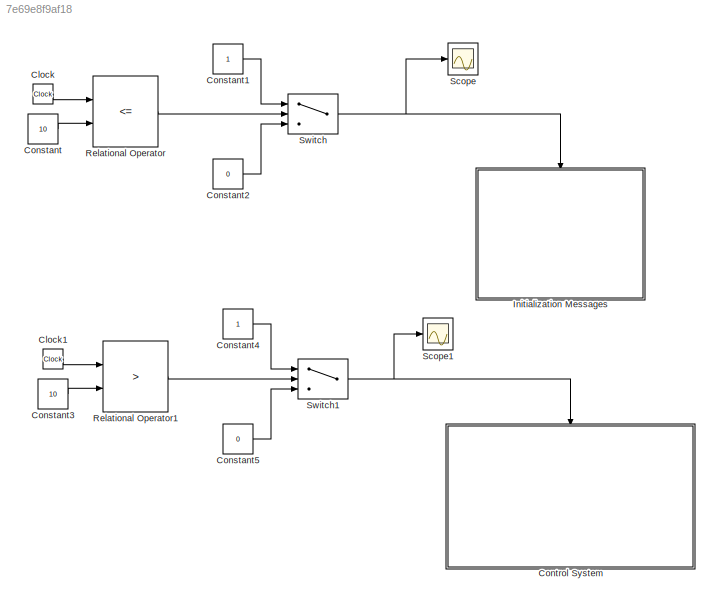
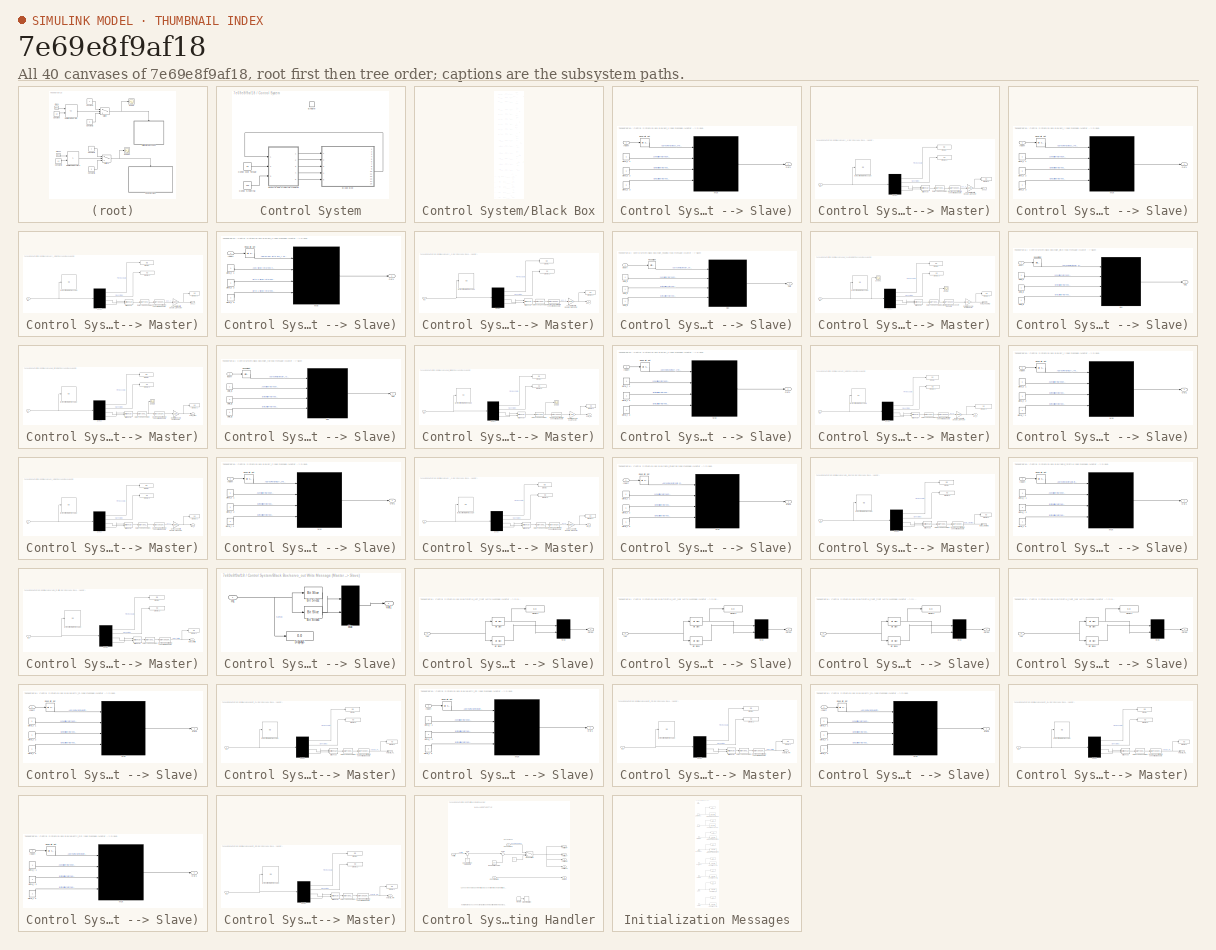
[diagram: thumbnail index - all 40 canvases of the model, root first then tree order]
MODEL slx_7e69e8f9af18
KIND model
CONFIG AbsTol = auto
CONFIG EnableMultiTasking = on
CONFIG FixedStep = .015
CONFIG MaxStep = auto
CONFIG MinStep = auto
CONFIG RelTol = 1e-3
CONFIG SampleTimeConstraint = Unconstrained
CONFIG Solver = FixedStepAuto
CONFIG SolverName = FixedStepAuto
CONFIG StartTime = 0.0
CONFIG StopTime = inf
BLOCK [Clock] Clock
BLOCK [Clock] Clock1
BLOCK [Constant] Constant
  Value = 10
BLOCK [Constant] Constant1
BLOCK [Constant] Constant2
  Value = 0
BLOCK [Constant] Constant3
  Value = 10
BLOCK [Constant] Constant4
BLOCK [Constant] Constant5
  Value = 0
BLOCK [SubSystem] Control System
  Ports = [0, 0, 1]
  RequestExecContextInheritance = off
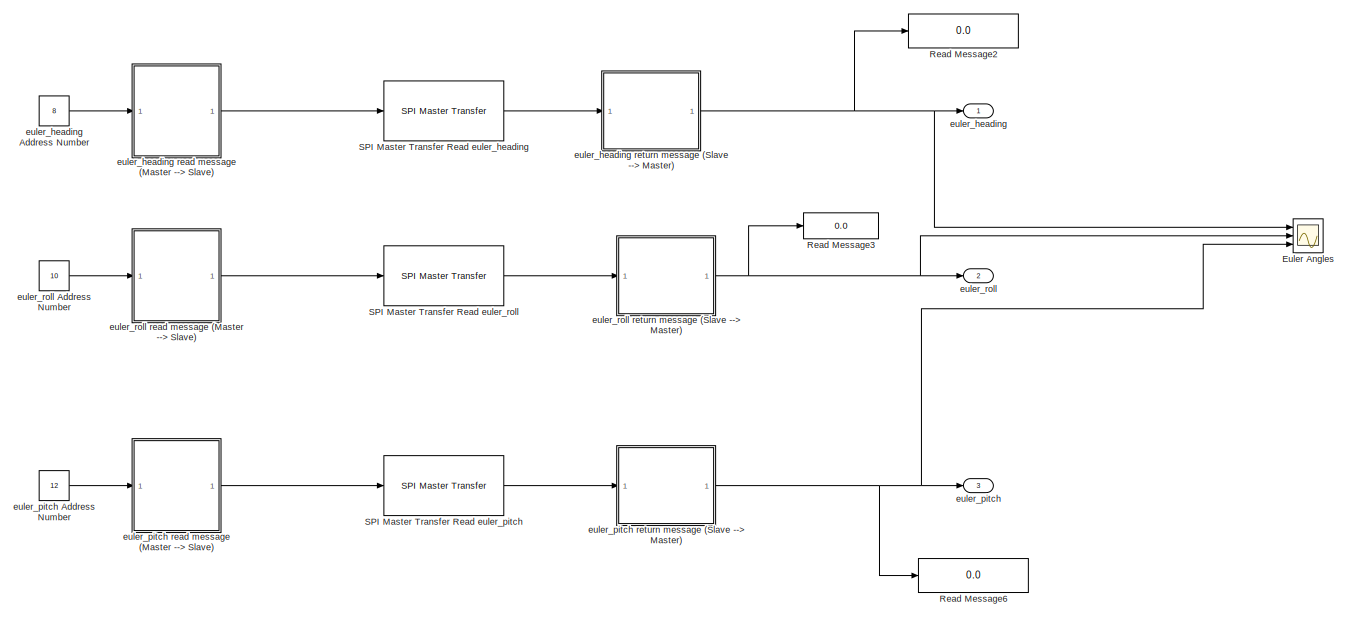
[diagram: Control System/Black Box - part 1/7, full width, top band]
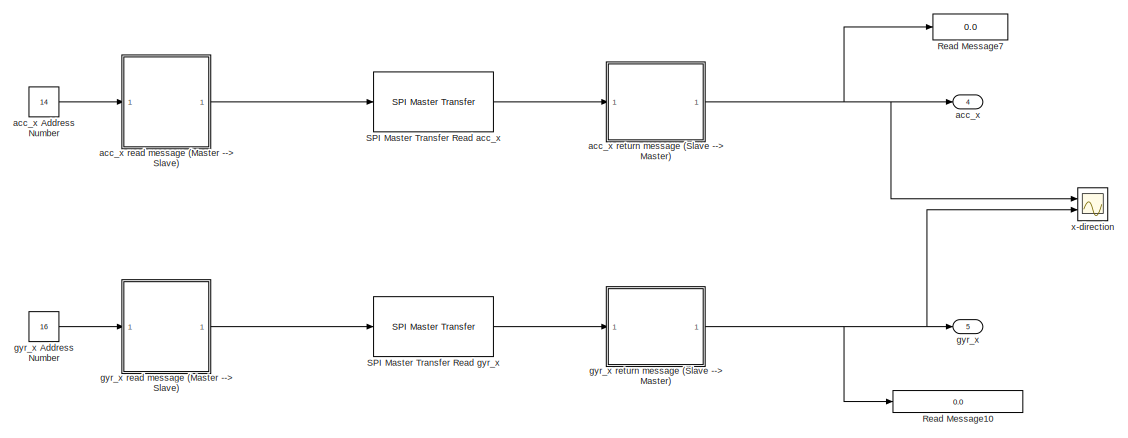
[diagram: Control System/Black Box - part 2/7, full width, top band]
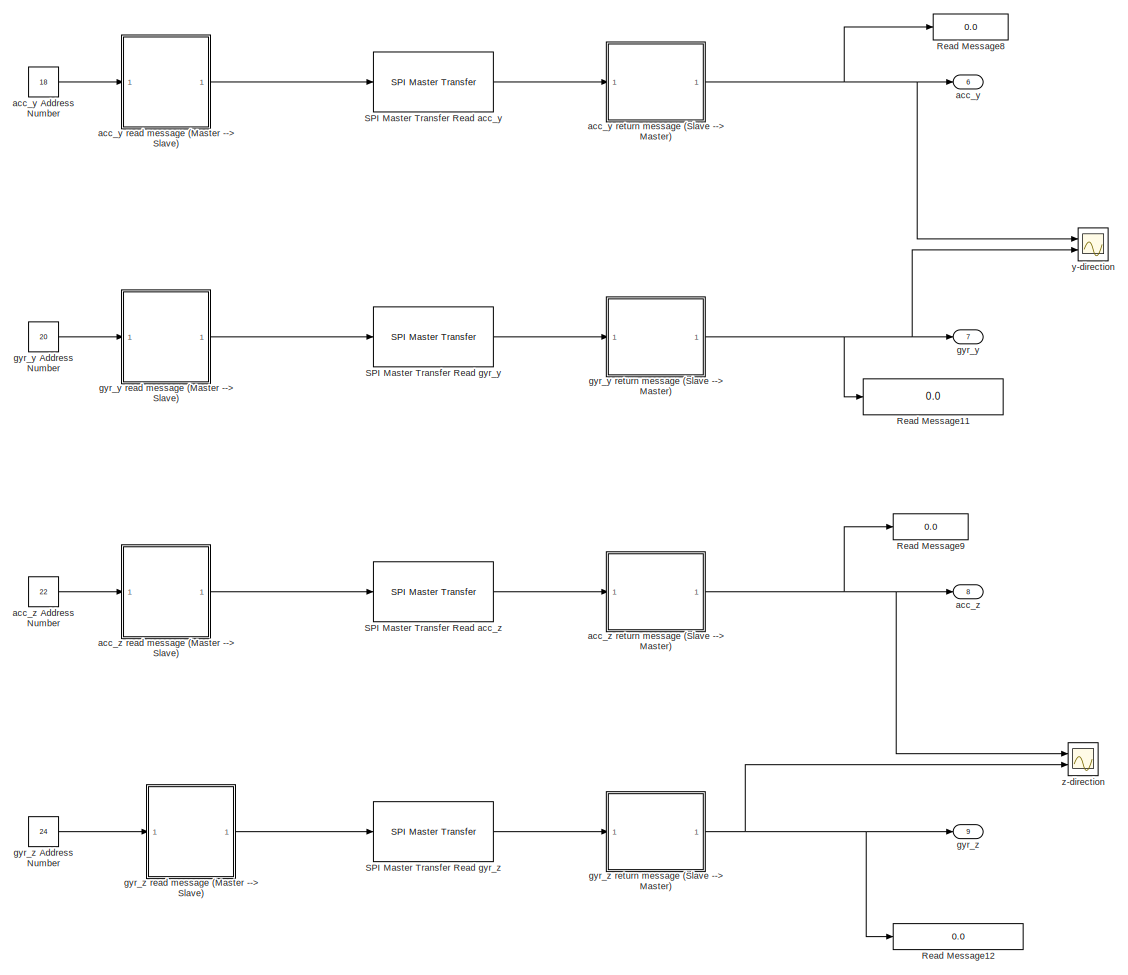
[diagram: Control System/Black Box - part 3/7, full width, top band]
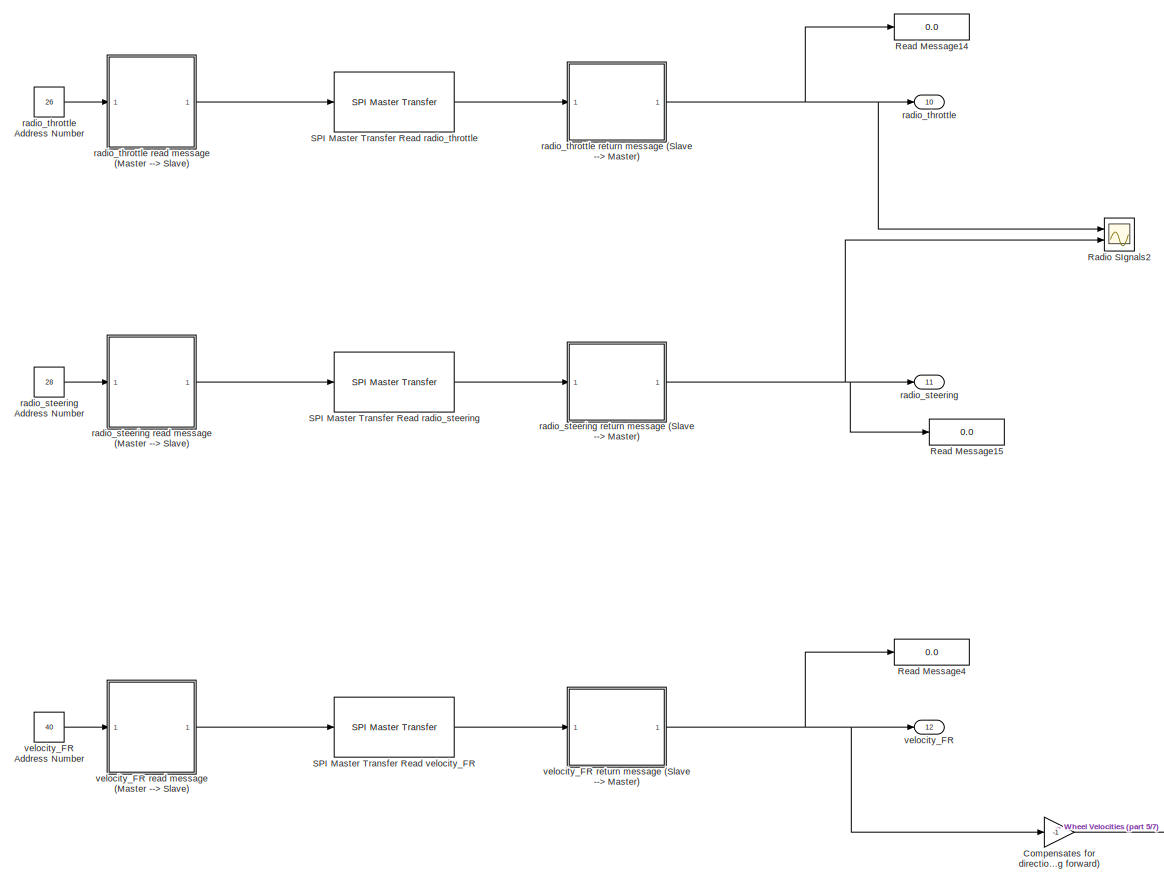
[diagram: Control System/Black Box - part 4/7, full width, middle band]
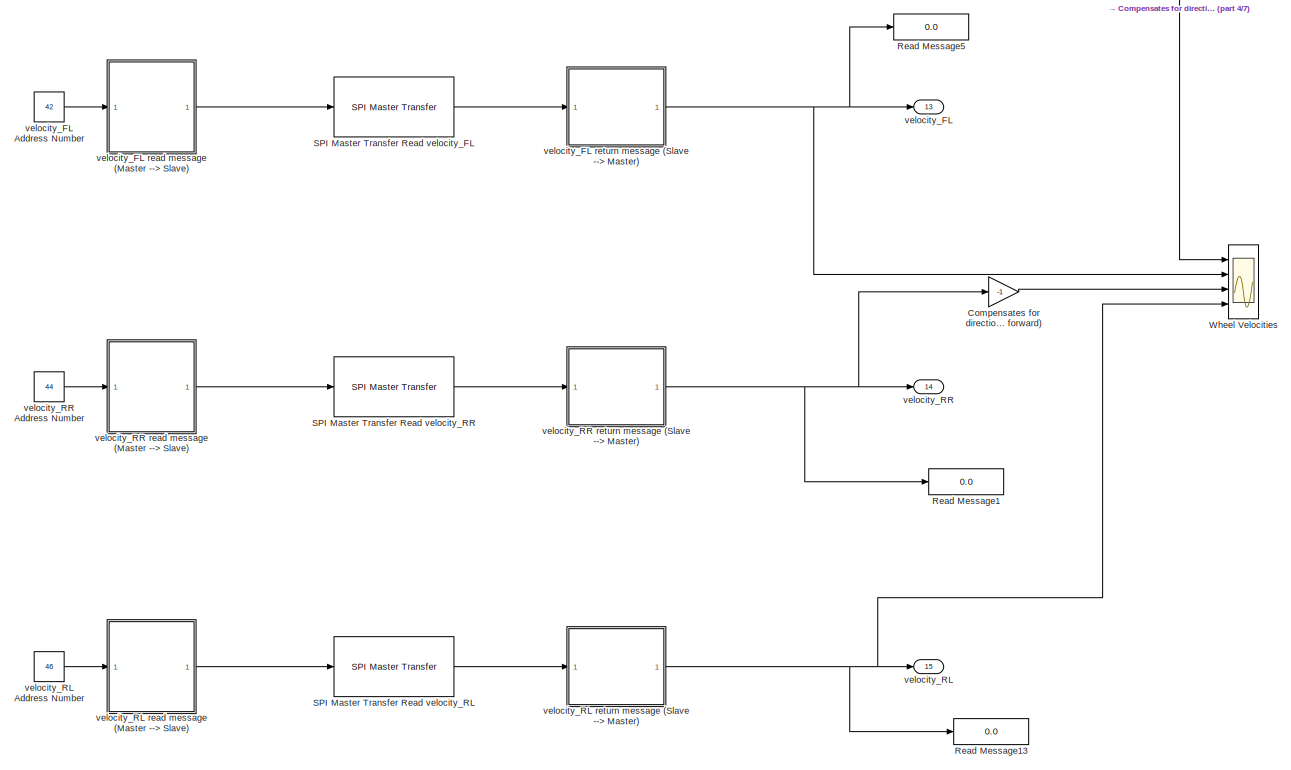
[diagram: Control System/Black Box - part 5/7, full width, bottom band]
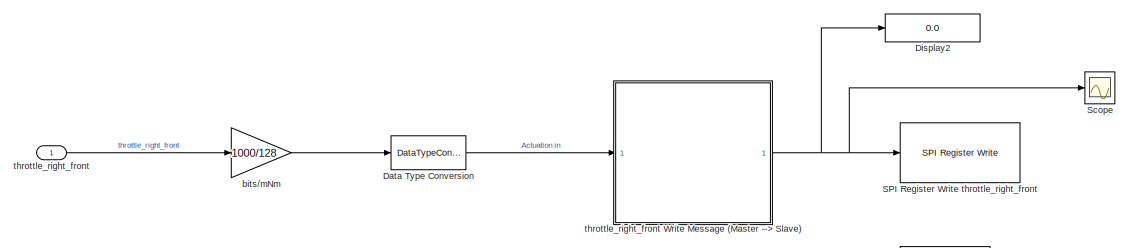
[diagram: Control System/Black Box - part 6/7, full width, bottom band]
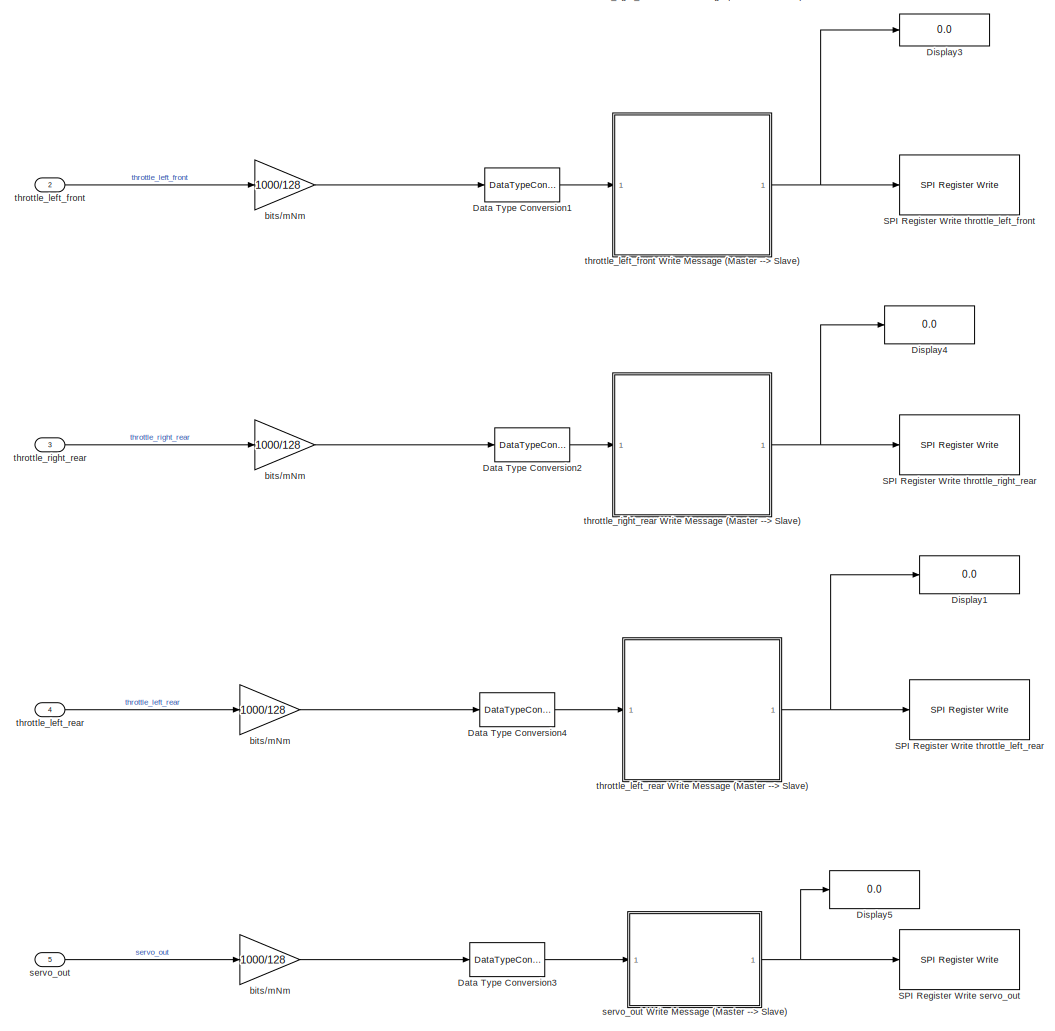
[diagram: Control System/Black Box - part 7/7, bottom center region]
BLOCK [SubSystem] Control System/Black Box
  Ports = [5, 15]
  RequestExecContextInheritance = off
BLOCK [Gain] Control System/Black Box/Compensates for direction of spin (want positive to be rolling forward)
  Gain = -1
  OutDataTypeStr = Inherit: Inherit via internal rule
  ParamDataTypeStr = Inherit: Inherit via internal rule
  SaturateOnIntegerOverflow = off
BLOCK [Gain] Control System/Black Box/Compensates for direction of spin (want positive to be rolling forward) 
  Gain = -1
  OutDataTypeStr = Inherit: Inherit via internal rule
  ParamDataTypeStr = Inherit: Inherit via internal rule
  SaturateOnIntegerOverflow = off
BLOCK [DataTypeConversion] Control System/Black Box/Data Type Conversion
  LockScale = on
  OutDataTypeStr = int16
  RndMeth = Nearest
  SaturateOnIntegerOverflow = off
BLOCK [DataTypeConversion] Control System/Black Box/Data Type Conversion1
  OutDataTypeStr = int16
  RndMeth = Nearest
  SaturateOnIntegerOverflow = off
BLOCK [DataTypeConversion] Control System/Black Box/Data Type Conversion2
  OutDataTypeStr = int16
  RndMeth = Nearest
  SaturateOnIntegerOverflow = off
BLOCK [DataTypeConversion] Control System/Black Box/Data Type Conversion3
  OutDataTypeStr = int16
  RndMeth = Nearest
  SaturateOnIntegerOverflow = off
BLOCK [DataTypeConversion] Control System/Black Box/Data Type Conversion4
  OutDataTypeStr = int16
  RndMeth = Nearest
  SaturateOnIntegerOverflow = off
BLOCK [Display] Control System/Black Box/Display1
  Decimation = 1
  Format = decimal (Stored Integer)
  Ports = [1]
BLOCK [Display] Control System/Black Box/Display2
  Decimation = 1
  Format = decimal (Stored Integer)
  Ports = [1]
BLOCK [Display] Control System/Black Box/Display3
  Decimation = 1
  Format = decimal (Stored Integer)
  Ports = [1]
BLOCK [Display] Control System/Black Box/Display4
  Decimation = 1
  Format = decimal (Stored Integer)
  Ports = [1]
BLOCK [Display] Control System/Black Box/Display5
  Decimation = 1
  Format = decimal (Stored Integer)
  Ports = [1]
BLOCK [Scope] Control System/Black Box/Euler Angles
  Floating = off
  NumInputPorts = 3
  Ports = [3]
  ScopeSpecificationString = Simulink.scopes.TimeScopeBlockCfg('CurrentConfiguration', extmgr.ConfigurationSet(extmgr.Configuration('Core','General UI',true),extmgr.Configuration('Core','Source UI',true),extmgr.Configuration('Sources','WiredSimulink',true,'DataLoggingVariableName','ScopeData4'),extmgr.Configuration('Visuals','Time Domain',true,'SerializedDisplays',{struct('MinYLimReal','1.67188','MaxYLimReal','11.20313','YLab...<+2908ch>
BLOCK [Scope] Control System/Black Box/Radio SIgnals2
  Floating = off
  NumInputPorts = 2
  Ports = [2]
  ScopeSpecificationString = Simulink.scopes.TimeScopeBlockCfg('CurrentConfiguration', extmgr.ConfigurationSet(extmgr.Configuration('Core','General UI',true),extmgr.Configuration('Core','Source UI',true),extmgr.Configuration('Sources','WiredSimulink',true,'DataLoggingVariableName','ScopeData3'),extmgr.Configuration('Visuals','Time Domain',true,'SerializedDisplays',{struct('MinYLimReal','-42.875','MaxYLimReal','475.875','YLabe...<+2192ch>
BLOCK [Display] Control System/Black Box/Read Message1
  Decimation = 1
  Format = decimal (Stored Integer)
  Ports = [1]
BLOCK [Display] Control System/Black Box/Read Message10
  Decimation = 1
  Format = decimal (Stored Integer)
  Ports = [1]
BLOCK [Display] Control System/Black Box/Read Message11
  Decimation = 1
  Format = decimal (Stored Integer)
  Ports = [1]
BLOCK [Display] Control System/Black Box/Read Message12
  Decimation = 1
  Format = decimal (Stored Integer)
  Ports = [1]
BLOCK [Display] Control System/Black Box/Read Message13
  Decimation = 1
  Format = decimal (Stored Integer)
  Ports = [1]
BLOCK [Display] Control System/Black Box/Read Message14
  Decimation = 1
  Format = decimal (Stored Integer)
  Ports = [1]
BLOCK [Display] Control System/Black Box/Read Message15
  Decimation = 1
  Format = decimal (Stored Integer)
  Ports = [1]
BLOCK [Display] Control System/Black Box/Read Message2
  Decimation = 1
  Format = decimal (Stored Integer)
  Ports = [1]
BLOCK [Display] Control System/Black Box/Read Message3
  Decimation = 1
  Format = decimal (Stored Integer)
  Ports = [1]
BLOCK [Display] Control System/Black Box/Read Message4
  Decimation = 1
  Format = decimal (Stored Integer)
  Ports = [1]
BLOCK [Display] Control System/Black Box/Read Message5
  Decimation = 1
  Format = decimal (Stored Integer)
  Ports = [1]
BLOCK [Display] Control System/Black Box/Read Message6
  Decimation = 1
  Format = decimal (Stored Integer)
  Ports = [1]
BLOCK [Display] Control System/Black Box/Read Message7
  Decimation = 1
  Format = decimal (Stored Integer)
  Ports = [1]
BLOCK [Display] Control System/Black Box/Read Message8
  Decimation = 1
  Format = decimal (Stored Integer)
  Ports = [1]
BLOCK [Display] Control System/Black Box/Read Message9
  Decimation = 1
  Format = decimal (Stored Integer)
  Ports = [1]
BLOCK [Reference] Control System/Black Box/SPI Master Transfer Read acc_x  REF=raspberrypilib/SPI Master Transfer
  Ports = [1, 1]
  SourceBlock = raspberrypilib/SPI Master Transfer
  SourceProductBaseCode = RASPPI
  SourceProductName = Simulink Support Package for Raspberry Pi Hardware
  SourceType = codertarget.raspi.internal.SPIMasterTransfer
BLOCK [Reference] Control System/Black Box/SPI Master Transfer Read acc_y  REF=raspberrypilib/SPI Master Transfer
  Ports = [1, 1]
  SourceBlock = raspberrypilib/SPI Master Transfer
  SourceProductBaseCode = RASPPI
  SourceProductName = Simulink Support Package for Raspberry Pi Hardware
  SourceType = codertarget.raspi.internal.SPIMasterTransfer
BLOCK [Reference] Control System/Black Box/SPI Master Transfer Read acc_z  REF=raspberrypilib/SPI Master Transfer
  Ports = [1, 1]
  SourceBlock = raspberrypilib/SPI Master Transfer
  SourceProductBaseCode = RASPPI
  SourceProductName = Simulink Support Package for Raspberry Pi Hardware
  SourceType = codertarget.raspi.internal.SPIMasterTransfer
BLOCK [Reference] Control System/Black Box/SPI Master Transfer Read euler_heading  REF=raspberrypilib/SPI Master Transfer
  Ports = [1, 1]
  SourceBlock = raspberrypilib/SPI Master Transfer
  SourceProductBaseCode = RASPPI
  SourceProductName = Simulink Support Package for Raspberry Pi Hardware
  SourceType = codertarget.raspi.internal.SPIMasterTransfer
BLOCK [Reference] Control System/Black Box/SPI Master Transfer Read euler_pitch  REF=raspberrypilib/SPI Master Transfer
  Ports = [1, 1]
  SourceBlock = raspberrypilib/SPI Master Transfer
  SourceProductBaseCode = RASPPI
  SourceProductName = Simulink Support Package for Raspberry Pi Hardware
  SourceType = codertarget.raspi.internal.SPIMasterTransfer
BLOCK [Reference] Control System/Black Box/SPI Master Transfer Read euler_roll  REF=raspberrypilib/SPI Master Transfer
  Ports = [1, 1]
  SourceBlock = raspberrypilib/SPI Master Transfer
  SourceProductBaseCode = RASPPI
  SourceProductName = Simulink Support Package for Raspberry Pi Hardware
  SourceType = codertarget.raspi.internal.SPIMasterTransfer
BLOCK [Reference] Control System/Black Box/SPI Master Transfer Read gyr_x  REF=raspberrypilib/SPI Master Transfer
  Ports = [1, 1]
  SourceBlock = raspberrypilib/SPI Master Transfer
  SourceProductBaseCode = RASPPI
  SourceProductName = Simulink Support Package for Raspberry Pi Hardware
  SourceType = codertarget.raspi.internal.SPIMasterTransfer
BLOCK [Reference] Control System/Black Box/SPI Master Transfer Read gyr_y  REF=raspberrypilib/SPI Master Transfer
  Ports = [1, 1]
  SourceBlock = raspberrypilib/SPI Master Transfer
  SourceProductBaseCode = RASPPI
  SourceProductName = Simulink Support Package for Raspberry Pi Hardware
  SourceType = codertarget.raspi.internal.SPIMasterTransfer
BLOCK [Reference] Control System/Black Box/SPI Master Transfer Read gyr_z  REF=raspberrypilib/SPI Master Transfer
  Ports = [1, 1]
  SourceBlock = raspberrypilib/SPI Master Transfer
  SourceProductBaseCode = RASPPI
  SourceProductName = Simulink Support Package for Raspberry Pi Hardware
  SourceType = codertarget.raspi.internal.SPIMasterTransfer
BLOCK [Reference] Control System/Black Box/SPI Master Transfer Read radio_steering  REF=raspberrypilib/SPI Master Transfer
  Ports = [1, 1]
  SourceBlock = raspberrypilib/SPI Master Transfer
  SourceProductBaseCode = RASPPI
  SourceProductName = Simulink Support Package for Raspberry Pi Hardware
  SourceType = codertarget.raspi.internal.SPIMasterTransfer
BLOCK [Reference] Control System/Black Box/SPI Master Transfer Read radio_throttle  REF=raspberrypilib/SPI Master Transfer
  Ports = [1, 1]
  SourceBlock = raspberrypilib/SPI Master Transfer
  SourceProductBaseCode = RASPPI
  SourceProductName = Simulink Support Package for Raspberry Pi Hardware
  SourceType = codertarget.raspi.internal.SPIMasterTransfer
BLOCK [Reference] Control System/Black Box/SPI Master Transfer Read velocity_FL  REF=raspberrypilib/SPI Master Transfer
  Ports = [1, 1]
  SourceBlock = raspberrypilib/SPI Master Transfer
  SourceProductBaseCode = RASPPI
  SourceProductName = Simulink Support Package for Raspberry Pi Hardware
  SourceType = codertarget.raspi.internal.SPIMasterTransfer
BLOCK [Reference] Control System/Black Box/SPI Master Transfer Read velocity_FR  REF=raspberrypilib/SPI Master Transfer
  Ports = [1, 1]
  SourceBlock = raspberrypilib/SPI Master Transfer
  SourceProductBaseCode = RASPPI
  SourceProductName = Simulink Support Package for Raspberry Pi Hardware
  SourceType = codertarget.raspi.internal.SPIMasterTransfer
BLOCK [Reference] Control System/Black Box/SPI Master Transfer Read velocity_RL  REF=raspberrypilib/SPI Master Transfer
  Ports = [1, 1]
  SourceBlock = raspberrypilib/SPI Master Transfer
  SourceProductBaseCode = RASPPI
  SourceProductName = Simulink Support Package for Raspberry Pi Hardware
  SourceType = codertarget.raspi.internal.SPIMasterTransfer
BLOCK [Reference] Control System/Black Box/SPI Master Transfer Read velocity_RR  REF=raspberrypilib/SPI Master Transfer
  Ports = [1, 1]
  SourceBlock = raspberrypilib/SPI Master Transfer
  SourceProductBaseCode = RASPPI
  SourceProductName = Simulink Support Package for Raspberry Pi Hardware
  SourceType = codertarget.raspi.internal.SPIMasterTransfer
BLOCK [Reference] Control System/Black Box/SPI Register Write servo_out   REF=raspberrypilib/SPI Register Write
  Ports = [1]
  SourceBlock = raspberrypilib/SPI Register Write
  SourceProductBaseCode = RASPPI
  SourceProductName = Simulink Support Package for Raspberry Pi Hardware
  SourceType = codertarget.raspi.internal.SPIRegisterWrite
BLOCK [Reference] Control System/Black Box/SPI Register Write throttle_left_front  REF=raspberrypilib/SPI Register Write
  Ports = [1]
  SourceBlock = raspberrypilib/SPI Register Write
  SourceProductBaseCode = RASPPI
  SourceProductName = Simulink Support Package for Raspberry Pi Hardware
  SourceType = codertarget.raspi.internal.SPIRegisterWrite
BLOCK [Reference] Control System/Black Box/SPI Register Write throttle_left_rear  REF=raspberrypilib/SPI Register Write
  Ports = [1]
  SourceBlock = raspberrypilib/SPI Register Write
  SourceProductBaseCode = RASPPI
  SourceProductName = Simulink Support Package for Raspberry Pi Hardware
  SourceType = codertarget.raspi.internal.SPIRegisterWrite
BLOCK [Reference] Control System/Black Box/SPI Register Write throttle_right_front  REF=raspberrypilib/SPI Register Write
  Ports = [1]
  SourceBlock = raspberrypilib/SPI Register Write
  SourceProductBaseCode = RASPPI
  SourceProductName = Simulink Support Package for Raspberry Pi Hardware
  SourceType = codertarget.raspi.internal.SPIRegisterWrite
BLOCK [Reference] Control System/Black Box/SPI Register Write throttle_right_rear  REF=raspberrypilib/SPI Register Write
  Ports = [1]
  SourceBlock = raspberrypilib/SPI Register Write
  SourceProductBaseCode = RASPPI
  SourceProductName = Simulink Support Package for Raspberry Pi Hardware
  SourceType = codertarget.raspi.internal.SPIRegisterWrite
BLOCK [Scope] Control System/Black Box/Scope
  Floating = off
  NumInputPorts = 1
  Ports = [1]
  ScopeSpecificationString = Simulink.scopes.TimeScopeBlockCfg('CurrentConfiguration', extmgr.ConfigurationSet(extmgr.Configuration('Core','General UI',true),extmgr.Configuration('Core','Source UI',true),extmgr.Configuration('Sources','WiredSimulink',true,'DataLoggingVariableName','ScopeData1'),extmgr.Configuration('Visuals','Time Domain',true,'SerializedDisplays',{struct('MinYLimReal','-1.00000','MaxYLimReal','1.00000','YLab...<+1472ch>
BLOCK [Scope] Control System/Black Box/Wheel Velocities
  Floating = off
  NumInputPorts = 4
  Ports = [4]
  ScopeSpecificationString = Simulink.scopes.TimeScopeBlockCfg('CurrentConfiguration', extmgr.ConfigurationSet(extmgr.Configuration('Core','General UI',true),extmgr.Configuration('Core','Source UI',true),extmgr.Configuration('Sources','WiredSimulink',true,'DataLoggingVariableName','ScopeData2'),extmgr.Configuration('Visuals','Time Domain',true,'SerializedDisplays',{struct('MinYLimReal','-984.375','MaxYLimReal','1069.375','YLa...<+3602ch>
BLOCK [Outport] Control System/Black Box/acc_x
  IconDisplay = Port number
  Port = 4
BLOCK [Constant] Control System/Black Box/acc_x Address Number
  OutDataTypeStr = uint8
  Value = 14
BLOCK [SubSystem] Control System/Black Box/acc_x read message (Master --> Slave)
  Ports = [1, 1]
  RequestExecContextInheritance = off
BLOCK [Inport] Control System/Black Box/acc_x read message (Master --> Slave)/Inport
  IconDisplay = Port number
BLOCK [Mux] Control System/Black Box/acc_x read message (Master --> Slave)/Mux
  DisplayOption = signals
  Ports = [4, 1]
BLOCK [Outport] Control System/Black Box/acc_x read message (Master --> Slave)/Out1
  IconDisplay = Port number
BLOCK [Reference] Control System/Black Box/acc_x read message (Master --> Slave)/Read Bit Set  REF=simulink/Logic and Bit
Operations/Bit Set
  Ports = [1, 1]
  SourceBlock = simulink/Logic and Bit\nOperations/Bit Set
  SourceProductBaseCode = SL
  SourceProductName = Simulink
  SourceType = Bit Set
BLOCK [Constant] Control System/Black Box/acc_x read message (Master --> Slave)/uint8_t 1
  OutDataTypeStr = uint8
BLOCK [Constant] Control System/Black Box/acc_x read message (Master --> Slave)/uint8_t 2
  OutDataTypeStr = uint8
BLOCK [Constant] Control System/Black Box/acc_x read message (Master --> Slave)/uint8_t 3
  OutDataTypeStr = uint8
BLOCK [SubSystem] Control System/Black Box/acc_x return message (Slave --> Master)
  Ports = [1, 1]
  RequestExecContextInheritance = off
BLOCK [DataTypeConversion] Control System/Black Box/acc_x return message (Slave --> Master)/8 bytes concatinated converted to double
  OutDataTypeStr = double
  RndMeth = Nearest
  SaturateOnIntegerOverflow = off
BLOCK [Gain] Control System/Black Box/acc_x return message (Slave --> Master)/Acceleration Int to Double Scale Factor
  Gain = 1/100
  OutDataTypeStr = Inherit: Inherit via internal rule
  ParamDataTypeStr = Inherit: Inherit via internal rule
  SaturateOnIntegerOverflow = off
BLOCK [Reference] Control System/Black Box/acc_x return message (Slave --> Master)/Bit Concat  REF=hdlsllib/Logic and Bit
Operations/Bit Concat
  Ports = [2, 1]
  SourceBlock = hdlsllib/Logic and Bit\nOperations/Bit Concat
  SourceProductBaseCode = HD
  SourceProductName = HDL Coder
  SourceType = Bit Concat
BLOCK [Display] Control System/Black Box/acc_x return message (Slave --> Master)/Bytes of the return message
  Decimation = 1
  Format = decimal (Stored Integer)
  Ports = [1]
BLOCK [DataTypeConversion] Control System/Black Box/acc_x return message (Slave --> Master)/Data Type Conversion
  OutDataTypeStr = int16
  RndMeth = Nearest
  SaturateOnIntegerOverflow = off
BLOCK [Demux] Control System/Black Box/acc_x return message (Slave --> Master)/Demux
  Ports = [1, 4]
BLOCK [Display] Control System/Black Box/acc_x return message (Slave --> Master)/Display
  Decimation = 1
  Format = binary (Stored Integer)
  Ports = [1]
BLOCK [Display] Control System/Black Box/acc_x return message (Slave --> Master)/Display1
  Decimation = 1
  Format = decimal (Stored Integer)
  Ports = [1]
BLOCK [Display] Control System/Black Box/acc_x return message (Slave --> Master)/Display2
  Decimation = 1
  Format = binary (Stored Integer)
  Ports = [1]
BLOCK [Inport] Control System/Black Box/acc_x return message (Slave --> Master)/In1
  IconDisplay = Port number
BLOCK [Outport] Control System/Black Box/acc_x return message (Slave --> Master)/acc_x
  IconDisplay = Port number
BLOCK [Outport] Control System/Black Box/acc_y
  IconDisplay = Port number
  Port = 6
BLOCK [Constant] Control System/Black Box/acc_y Address Number
  OutDataTypeStr = uint8
  Value = 18
BLOCK [SubSystem] Control System/Black Box/acc_y read message (Master --> Slave)
  Ports = [1, 1]
  RequestExecContextInheritance = off
BLOCK [Inport] Control System/Black Box/acc_y read message (Master --> Slave)/Inport
  IconDisplay = Port number
BLOCK [Mux] Control System/Black Box/acc_y read message (Master --> Slave)/Mux
  DisplayOption = signals
  Ports = [4, 1]
BLOCK [Outport] Control System/Black Box/acc_y read message (Master --> Slave)/Out1
  IconDisplay = Port number
BLOCK [Reference] Control System/Black Box/acc_y read message (Master --> Slave)/Read Bit Set  REF=simulink/Logic and Bit
Operations/Bit Set
  Ports = [1, 1]
  SourceBlock = simulink/Logic and Bit\nOperations/Bit Set
  SourceProductBaseCode = SL
  SourceProductName = Simulink
  SourceType = Bit Set
BLOCK [Constant] Control System/Black Box/acc_y read message (Master --> Slave)/uint8_t 1
  OutDataTypeStr = uint8
BLOCK [Constant] Control System/Black Box/acc_y read message (Master --> Slave)/uint8_t 2
  OutDataTypeStr = uint8
BLOCK [Constant] Control System/Black Box/acc_y read message (Master --> Slave)/uint8_t 3
  OutDataTypeStr = uint8
BLOCK [SubSystem] Control System/Black Box/acc_y return message (Slave --> Master)
  Ports = [1, 1]
  RequestExecContextInheritance = off
BLOCK [DataTypeConversion] Control System/Black Box/acc_y return message (Slave --> Master)/8 bytes concatinated converted to double
  OutDataTypeStr = double
  RndMeth = Nearest
  SaturateOnIntegerOverflow = off
BLOCK [Gain] Control System/Black Box/acc_y return message (Slave --> Master)/Acceleration Int to Double Scale Factor
  Gain = 1/100
  OutDataTypeStr = Inherit: Inherit via internal rule
  ParamDataTypeStr = Inherit: Inherit via internal rule
  SaturateOnIntegerOverflow = off
BLOCK [Reference] Control System/Black Box/acc_y return message (Slave --> Master)/Bit Concat  REF=hdlsllib/Logic and Bit
Operations/Bit Concat
  Ports = [2, 1]
  SourceBlock = hdlsllib/Logic and Bit\nOperations/Bit Concat
  SourceProductBaseCode = HD
  SourceProductName = HDL Coder
  SourceType = Bit Concat
BLOCK [Display] Control System/Black Box/acc_y return message (Slave --> Master)/Bytes of the return message
  Decimation = 1
  Format = decimal (Stored Integer)
  Ports = [1]
BLOCK [DataTypeConversion] Control System/Black Box/acc_y return message (Slave --> Master)/Data Type Conversion
  OutDataTypeStr = int16
  RndMeth = Nearest
  SaturateOnIntegerOverflow = off
BLOCK [Demux] Control System/Black Box/acc_y return message (Slave --> Master)/Demux
  Ports = [1, 4]
BLOCK [Display] Control System/Black Box/acc_y return message (Slave --> Master)/Display
  Decimation = 1
  Format = binary (Stored Integer)
  Ports = [1]
BLOCK [Display] Control System/Black Box/acc_y return message (Slave --> Master)/Display1
  Decimation = 1
  Format = decimal (Stored Integer)
  Ports = [1]
BLOCK [Display] Control System/Black Box/acc_y return message (Slave --> Master)/Display2
  Decimation = 1
  Format = binary (Stored Integer)
  Ports = [1]
BLOCK [Inport] Control System/Black Box/acc_y return message (Slave --> Master)/In1
  IconDisplay = Port number
BLOCK [Outport] Control System/Black Box/acc_y return message (Slave --> Master)/acc_y
  IconDisplay = Port number
BLOCK [Outport] Control System/Black Box/acc_z
  IconDisplay = Port number
  Port = 8
BLOCK [Constant] Control System/Black Box/acc_z Address Number
  OutDataTypeStr = uint8
  Value = 22
BLOCK [SubSystem] Control System/Black Box/acc_z read message (Master --> Slave)
  Ports = [1, 1]
  RequestExecContextInheritance = off
BLOCK [Inport] Control System/Black Box/acc_z read message (Master --> Slave)/Inport
  IconDisplay = Port number
BLOCK [Mux] Control System/Black Box/acc_z read message (Master --> Slave)/Mux
  DisplayOption = signals
  Ports = [4, 1]
BLOCK [Outport] Control System/Black Box/acc_z read message (Master --> Slave)/Out1
  IconDisplay = Port number
BLOCK [Reference] Control System/Black Box/acc_z read message (Master --> Slave)/Read Bit Set  REF=simulink/Logic and Bit
Operations/Bit Set
  Ports = [1, 1]
  SourceBlock = simulink/Logic and Bit\nOperations/Bit Set
  SourceProductBaseCode = SL
  SourceProductName = Simulink
  SourceType = Bit Set
BLOCK [Constant] Control System/Black Box/acc_z read message (Master --> Slave)/uint8_t 1
  OutDataTypeStr = uint8
BLOCK [Constant] Control System/Black Box/acc_z read message (Master --> Slave)/uint8_t 2
  OutDataTypeStr = uint8
BLOCK [Constant] Control System/Black Box/acc_z read message (Master --> Slave)/uint8_t 3
  OutDataTypeStr = uint8
BLOCK [SubSystem] Control System/Black Box/acc_z return message (Slave --> Master)
  Ports = [1, 1]
  RequestExecContextInheritance = off
BLOCK [DataTypeConversion] Control System/Black Box/acc_z return message (Slave --> Master)/8 bytes concatinated converted to double
  OutDataTypeStr = double
  RndMeth = Nearest
  SaturateOnIntegerOverflow = off
BLOCK [Gain] Control System/Black Box/acc_z return message (Slave --> Master)/Acceleration Int to Double Scale Factor
  Gain = 1/100
  OutDataTypeStr = Inherit: Inherit via internal rule
  ParamDataTypeStr = Inherit: Inherit via internal rule
  SaturateOnIntegerOverflow = off
BLOCK [Reference] Control System/Black Box/acc_z return message (Slave --> Master)/Bit Concat  REF=hdlsllib/Logic and Bit
Operations/Bit Concat
  Ports = [2, 1]
  SourceBlock = hdlsllib/Logic and Bit\nOperations/Bit Concat
  SourceProductBaseCode = HD
  SourceProductName = HDL Coder
  SourceType = Bit Concat
BLOCK [Display] Control System/Black Box/acc_z return message (Slave --> Master)/Bytes of the return message
  Decimation = 1
  Format = decimal (Stored Integer)
  Ports = [1]
BLOCK [DataTypeConversion] Control System/Black Box/acc_z return message (Slave --> Master)/Data Type Conversion
  OutDataTypeStr = int16
  RndMeth = Nearest
  SaturateOnIntegerOverflow = off
BLOCK [Demux] Control System/Black Box/acc_z return message (Slave --> Master)/Demux
  Ports = [1, 4]
BLOCK [Display] Control System/Black Box/acc_z return message (Slave --> Master)/Display
  Decimation = 1
  Format = binary (Stored Integer)
  Ports = [1]
BLOCK [Display] Control System/Black Box/acc_z return message (Slave --> Master)/Display1
  Decimation = 1
  Format = decimal (Stored Integer)
  Ports = [1]
BLOCK [Display] Control System/Black Box/acc_z return message (Slave --> Master)/Display2
  Decimation = 1
  Format = binary (Stored Integer)
  Ports = [1]
BLOCK [Inport] Control System/Black Box/acc_z return message (Slave --> Master)/In1
  IconDisplay = Port number
BLOCK [Outport] Control System/Black Box/acc_z return message (Slave --> Master)/acc_z
  IconDisplay = Port number
BLOCK [Gain] Control System/Black Box/bits//mNm
  Gain = 1000/128
  OutDataTypeStr = Inherit: Inherit via internal rule
  ParamDataTypeStr = Inherit: Inherit via internal rule
  SaturateOnIntegerOverflow = off
BLOCK [Gain] Control System/Black Box/bits//mNm 
  Gain = 1000/128
  OutDataTypeStr = Inherit: Inherit via internal rule
  ParamDataTypeStr = Inherit: Inherit via internal rule
  SaturateOnIntegerOverflow = off
BLOCK [Gain] Control System/Black Box/bits//mNm  
  Gain = 1000/128
  OutDataTypeStr = Inherit: Inherit via internal rule
  ParamDataTypeStr = Inherit: Inherit via internal rule
  SaturateOnIntegerOverflow = off
BLOCK [Gain] Control System/Black Box/bits//mNm   
  Gain = 1000/128
  OutDataTypeStr = Inherit: Inherit via internal rule
  ParamDataTypeStr = Inherit: Inherit via internal rule
  SaturateOnIntegerOverflow = off
BLOCK [Gain] Control System/Black Box/bits//mNm    
  Gain = 1000/128
  OutDataTypeStr = Inherit: Inherit via internal rule
  ParamDataTypeStr = Inherit: Inherit via internal rule
  SaturateOnIntegerOverflow = off
BLOCK [Outport] Control System/Black Box/euler_heading
  IconDisplay = Port number
BLOCK [Constant] Control System/Black Box/euler_heading Address Number
  OutDataTypeStr = uint8
  Value = 8
BLOCK [SubSystem] Control System/Black Box/euler_heading read message (Master --> Slave)
  Ports = [1, 1]
  RequestExecContextInheritance = off
BLOCK [Inport] Control System/Black Box/euler_heading read message (Master --> Slave)/Inport
  IconDisplay = Port number
BLOCK [Mux] Control System/Black Box/euler_heading read message (Master --> Slave)/Mux
  DisplayOption = signals
  Ports = [4, 1]
BLOCK [Outport] Control System/Black Box/euler_heading read message (Master --> Slave)/Out1
  IconDisplay = Port number
BLOCK [Reference] Control System/Black Box/euler_heading read message (Master --> Slave)/Read Bit Set  REF=simulink/Logic and Bit
Operations/Bit Set
  Ports = [1, 1]
  SourceBlock = simulink/Logic and Bit\nOperations/Bit Set
  SourceProductBaseCode = SL
  SourceProductName = Simulink
  SourceType = Bit Set
BLOCK [Constant] Control System/Black Box/euler_heading read message (Master --> Slave)/uint8_t  1
  OutDataTypeStr = uint8
BLOCK [Constant] Control System/Black Box/euler_heading read message (Master --> Slave)/uint8_t  2
  OutDataTypeStr = uint8
BLOCK [Constant] Control System/Black Box/euler_heading read message (Master --> Slave)/uint8_t  3
  OutDataTypeStr = uint8
BLOCK [SubSystem] Control System/Black Box/euler_heading return message (Slave --> Master)
  Ports = [1, 1]
  RequestExecContextInheritance = off
BLOCK [Reference] Control System/Black Box/euler_heading return message (Slave --> Master)/Bit Concat  REF=hdlsllib/Logic and Bit
Operations/Bit Concat
  Ports = [2, 1]
  SourceBlock = hdlsllib/Logic and Bit\nOperations/Bit Concat
  SourceProductBaseCode = HD
  SourceProductName = HDL Coder
  SourceType = Bit Concat
BLOCK [Display] Control System/Black Box/euler_heading return message (Slave --> Master)/Bytes of the return message
  Decimation = 1
  Format = decimal (Stored Integer)
  Ports = [1]
BLOCK [DataTypeConversion] Control System/Black Box/euler_heading return message (Slave --> Master)/Data Type Conversion
  OutDataTypeStr = int16
  RndMeth = Nearest
  SaturateOnIntegerOverflow = off
BLOCK [Demux] Control System/Black Box/euler_heading return message (Slave --> Master)/Demux
  Ports = [1, 4]
BLOCK [Display] Control System/Black Box/euler_heading return message (Slave --> Master)/Display
  Decimation = 1
  Format = binary (Stored Integer)
  Ports = [1]
BLOCK [Display] Control System/Black Box/euler_heading return message (Slave --> Master)/Display1
  Decimation = 1
  Format = decimal (Stored Integer)
  Ports = [1]
BLOCK [Display] Control System/Black Box/euler_heading return message (Slave --> Master)/Display2
  Decimation = 1
  Format = binary (Stored Integer)
  Ports = [1]
BLOCK [Gain] Control System/Black Box/euler_heading return message (Slave --> Master)/Euler Int to Double Scale Factor
  Gain = 1/16
  OutDataTypeStr = Inherit: Inherit via internal rule
  ParamDataTypeStr = Inherit: Inherit via internal rule
  SaturateOnIntegerOverflow = off
BLOCK [Inport] Control System/Black Box/euler_heading return message (Slave --> Master)/In1
  IconDisplay = Port number
BLOCK [Scope] Control System/Black Box/euler_heading return message (Slave --> Master)/Scope
  Floating = off
  NumInputPorts = 1
  Ports = [1]
  ScopeSpecificationString = Simulink.scopes.TimeScopeBlockCfg('CurrentConfiguration', extmgr.ConfigurationSet(extmgr.Configuration('Core','General UI',true),extmgr.Configuration('Core','Source UI',true),extmgr.Configuration('Sources','WiredSimulink',true,'DataLoggingVariableName','ScopeData8'),extmgr.Configuration('Visuals','Time Domain',true,'SerializedDisplays',{struct('MinYLimReal','1315.00000','MaxYLimReal','3315.00000',...<+1474ch>
BLOCK [Scope] Control System/Black Box/euler_heading return message (Slave --> Master)/Scope1
  Floating = off
  NumInputPorts = 1
  Ports = [1]
  ScopeSpecificationString = Simulink.scopes.TimeScopeBlockCfg('CurrentConfiguration', extmgr.ConfigurationSet(extmgr.Configuration('Core','General UI',true),extmgr.Configuration('Core','Source UI',true),extmgr.Configuration('Sources','WiredSimulink',true,'DataLoggingVariableName','ScopeData10'),extmgr.Configuration('Visuals','Time Domain',true,'SerializedDisplays',{struct('MinYLimReal','-17.25','MaxYLimReal','155.25','YLabel...<+1454ch>
BLOCK [DataTypeConversion] Control System/Black Box/euler_heading return message (Slave --> Master)/concatinate bytes and convert to double
  LockScale = on
  OutDataTypeStr = double
  RndMeth = Nearest
  SaturateOnIntegerOverflow = off
BLOCK [Outport] Control System/Black Box/euler_heading return message (Slave --> Master)/euler_heading
  IconDisplay = Port number
BLOCK [Outport] Control System/Black Box/euler_pitch
  IconDisplay = Port number
  Port = 3
BLOCK [Constant] Control System/Black Box/euler_pitch Address Number
  OutDataTypeStr = uint8
  Value = 12
BLOCK [SubSystem] Control System/Black Box/euler_pitch read message (Master --> Slave)
  Ports = [1, 1]
  RequestExecContextInheritance = off
BLOCK [Inport] Control System/Black Box/euler_pitch read message (Master --> Slave)/Inport
  IconDisplay = Port number
BLOCK [Mux] Control System/Black Box/euler_pitch read message (Master --> Slave)/Mux
  DisplayOption = signals
  Ports = [4, 1]
BLOCK [Outport] Control System/Black Box/euler_pitch read message (Master --> Slave)/Out1
  IconDisplay = Port number
BLOCK [Reference] Control System/Black Box/euler_pitch read message (Master --> Slave)/Read Bit Set  REF=simulink/Logic and Bit
Operations/Bit Set
  Ports = [1, 1]
  SourceBlock = simulink/Logic and Bit\nOperations/Bit Set
  SourceProductBaseCode = SL
  SourceProductName = Simulink
  SourceType = Bit Set
BLOCK [Constant] Control System/Black Box/euler_pitch read message (Master --> Slave)/uint8_t 1
  OutDataTypeStr = uint8
BLOCK [Constant] Control System/Black Box/euler_pitch read message (Master --> Slave)/uint8_t 2
  OutDataTypeStr = uint8
BLOCK [Constant] Control System/Black Box/euler_pitch read message (Master --> Slave)/uint8_t 3
  OutDataTypeStr = uint8
BLOCK [SubSystem] Control System/Black Box/euler_pitch return message (Slave --> Master)
  Ports = [1, 1]
  RequestExecContextInheritance = off
BLOCK [DataTypeConversion] Control System/Black Box/euler_pitch return message (Slave --> Master)/8 bytes concatinated converted to double
  OutDataTypeStr = double
  RndMeth = Nearest
  SaturateOnIntegerOverflow = off
BLOCK [Reference] Control System/Black Box/euler_pitch return message (Slave --> Master)/Bit Concat  REF=hdlsllib/Logic and Bit
Operations/Bit Concat
  Ports = [2, 1]
  SourceBlock = hdlsllib/Logic and Bit\nOperations/Bit Concat
  SourceProductBaseCode = HD
  SourceProductName = HDL Coder
  SourceType = Bit Concat
BLOCK [Display] Control System/Black Box/euler_pitch return message (Slave --> Master)/Bytes of the return message
  Decimation = 1
  Format = decimal (Stored Integer)
  Ports = [1]
BLOCK [DataTypeConversion] Control System/Black Box/euler_pitch return message (Slave --> Master)/Data Type Conversion
  OutDataTypeStr = int16
  RndMeth = Floor
  SaturateOnIntegerOverflow = off
BLOCK [Demux] Control System/Black Box/euler_pitch return message (Slave --> Master)/Demux
  Ports = [1, 4]
BLOCK [Display] Control System/Black Box/euler_pitch return message (Slave --> Master)/Display
  Decimation = 1
  Format = binary (Stored Integer)
  Ports = [1]
BLOCK [Display] Control System/Black Box/euler_pitch return message (Slave --> Master)/Display1
  Decimation = 1
  Format = decimal (Stored Integer)
  Ports = [1]
BLOCK [Display] Control System/Black Box/euler_pitch return message (Slave --> Master)/Display2
  Decimation = 1
  Format = binary (Stored Integer)
  Ports = [1]
BLOCK [Gain] Control System/Black Box/euler_pitch return message (Slave --> Master)/Euler Int to Double Scale Factor
  Gain = 1/16
  OutDataTypeStr = Inherit: Inherit via internal rule
  ParamDataTypeStr = Inherit: Inherit via internal rule
BLOCK [Inport] Control System/Black Box/euler_pitch return message (Slave --> Master)/In1
  IconDisplay = Port number
BLOCK [Scope] Control System/Black Box/euler_pitch return message (Slave --> Master)/Scope
  Floating = off
  NumInputPorts = 1
  Ports = [1]
  ScopeSpecificationString = Simulink.scopes.TimeScopeBlockCfg('CurrentConfiguration', extmgr.ConfigurationSet(extmgr.Configuration('Core','General UI',true),extmgr.Configuration('Core','Source UI',true),extmgr.Configuration('Sources','WiredSimulink',true,'DataLoggingVariableName','ScopeData9'),extmgr.Configuration('Visuals','Time Domain',true,'SerializedDisplays',{struct('MinYLimReal','227.16723','MaxYLimReal','274.30527','Y...<+1507ch>
BLOCK [Outport] Control System/Black Box/euler_pitch return message (Slave --> Master)/euler_pitch
  IconDisplay = Port number
BLOCK [Outport] Control System/Black Box/euler_roll
  IconDisplay = Port number
  Port = 2
BLOCK [Constant] Control System/Black Box/euler_roll Address Number
  OutDataTypeStr = uint8
  Value = 10
BLOCK [SubSystem] Control System/Black Box/euler_roll read message (Master --> Slave)
  Ports = [1, 1]
  RequestExecContextInheritance = off
BLOCK [Inport] Control System/Black Box/euler_roll read message (Master --> Slave)/Inport
  IconDisplay = Port number
BLOCK [Mux] Control System/Black Box/euler_roll read message (Master --> Slave)/Mux
  DisplayOption = signals
  Ports = [4, 1]
BLOCK [Outport] Control System/Black Box/euler_roll read message (Master --> Slave)/Out1
  IconDisplay = Port number
BLOCK [Reference] Control System/Black Box/euler_roll read message (Master --> Slave)/Read Bit Set  REF=simulink/Logic and Bit
Operations/Bit Set
  Ports = [1, 1]
  SourceBlock = simulink/Logic and Bit\nOperations/Bit Set
  SourceProductBaseCode = SL
  SourceProductName = Simulink
  SourceType = Bit Set
BLOCK [Constant] Control System/Black Box/euler_roll read message (Master --> Slave)/uint8_t  1
  OutDataTypeStr = uint8
BLOCK [Constant] Control System/Black Box/euler_roll read message (Master --> Slave)/uint8_t  2
  OutDataTypeStr = uint8
BLOCK [Constant] Control System/Black Box/euler_roll read message (Master --> Slave)/uint8_t  3
  OutDataTypeStr = uint8
BLOCK [SubSystem] Control System/Black Box/euler_roll return message (Slave --> Master)
  Ports = [1, 1]
  RequestExecContextInheritance = off
BLOCK [DataTypeConversion] Control System/Black Box/euler_roll return message (Slave --> Master)/8 bytes concatinated converted to double
  OutDataTypeStr = double
  RndMeth = Nearest
  SaturateOnIntegerOverflow = off
BLOCK [Reference] Control System/Black Box/euler_roll return message (Slave --> Master)/Bit Concat  REF=hdlsllib/Logic and Bit
Operations/Bit Concat
  Ports = [2, 1]
  SourceBlock = hdlsllib/Logic and Bit\nOperations/Bit Concat
  SourceProductBaseCode = HD
  SourceProductName = HDL Coder
  SourceType = Bit Concat
BLOCK [Display] Control System/Black Box/euler_roll return message (Slave --> Master)/Bytes of the return message
  Decimation = 1
  Format = decimal (Stored Integer)
  Ports = [1]
BLOCK [DataTypeConversion] Control System/Black Box/euler_roll return message (Slave --> Master)/Data Type Conversion
  OutDataTypeStr = int16
  RndMeth = Nearest
  SaturateOnIntegerOverflow = off
BLOCK [Demux] Control System/Black Box/euler_roll return message (Slave --> Master)/Demux
  Ports = [1, 4]
BLOCK [Display] Control System/Black Box/euler_roll return message (Slave --> Master)/Display
  Decimation = 1
  Format = binary (Stored Integer)
  Ports = [1]
BLOCK [Display] Control System/Black Box/euler_roll return message (Slave --> Master)/Display1
  Decimation = 1
  Format = decimal (Stored Integer)
  Ports = [1]
BLOCK [Display] Control System/Black Box/euler_roll return message (Slave --> Master)/Display2
  Decimation = 1
  Format = binary (Stored Integer)
  Ports = [1]
BLOCK [Gain] Control System/Black Box/euler_roll return message (Slave --> Master)/Euler Int to Double Scale Factor
  Gain = 1/16
  OutDataTypeStr = Inherit: Inherit via internal rule
  ParamDataTypeStr = Inherit: Inherit via internal rule
  SaturateOnIntegerOverflow = off
BLOCK [Inport] Control System/Black Box/euler_roll return message (Slave --> Master)/In1
  IconDisplay = Port number
BLOCK [Scope] Control System/Black Box/euler_roll return message (Slave --> Master)/Scope
  Floating = off
  NumInputPorts = 1
  Ports = [1]
  ScopeSpecificationString = Simulink.scopes.TimeScopeBlockCfg('CurrentConfiguration', extmgr.ConfigurationSet(extmgr.Configuration('Core','General UI',true),extmgr.Configuration('Core','Source UI',true),extmgr.Configuration('Sources','WiredSimulink',true,'DataLoggingVariableName','ScopeData7'),extmgr.Configuration('Visuals','Time Domain',true,'SerializedDisplays',{struct('MinYLimReal','5.00000','MaxYLimReal','7.00000','YLabe...<+1431ch>
BLOCK [Outport] Control System/Black Box/euler_roll return message (Slave --> Master)/euler_roll
  IconDisplay = Port number
BLOCK [Outport] Control System/Black Box/gyr_x
  IconDisplay = Port number
  Port = 5
BLOCK [Constant] Control System/Black Box/gyr_x Address Number
  OutDataTypeStr = uint8
  Value = 16
BLOCK [SubSystem] Control System/Black Box/gyr_x read message (Master --> Slave)
  Ports = [1, 1]
  RequestExecContextInheritance = off
BLOCK [Inport] Control System/Black Box/gyr_x read message (Master --> Slave)/Inport
  IconDisplay = Port number
BLOCK [Mux] Control System/Black Box/gyr_x read message (Master --> Slave)/Mux
  DisplayOption = signals
  Ports = [4, 1]
BLOCK [Outport] Control System/Black Box/gyr_x read message (Master --> Slave)/Out1
  IconDisplay = Port number
BLOCK [Reference] Control System/Black Box/gyr_x read message (Master --> Slave)/Read Bit Set  REF=simulink/Logic and Bit
Operations/Bit Set
  Ports = [1, 1]
  SourceBlock = simulink/Logic and Bit\nOperations/Bit Set
  SourceProductBaseCode = SL
  SourceProductName = Simulink
  SourceType = Bit Set
BLOCK [Constant] Control System/Black Box/gyr_x read message (Master --> Slave)/uint8_t 1
  OutDataTypeStr = uint8
BLOCK [Constant] Control System/Black Box/gyr_x read message (Master --> Slave)/uint8_t 2
  OutDataTypeStr = uint8
BLOCK [Constant] Control System/Black Box/gyr_x read message (Master --> Slave)/uint8_t 3
  OutDataTypeStr = uint8
BLOCK [SubSystem] Control System/Black Box/gyr_x return message (Slave --> Master)
  Ports = [1, 1]
  RequestExecContextInheritance = off
BLOCK [DataTypeConversion] Control System/Black Box/gyr_x return message (Slave --> Master)/8 bytes concatinated converted to double
  OutDataTypeStr = double
  RndMeth = Nearest
  SaturateOnIntegerOverflow = off
BLOCK [Reference] Control System/Black Box/gyr_x return message (Slave --> Master)/Bit Concat  REF=hdlsllib/Logic and Bit
Operations/Bit Concat
  Ports = [2, 1]
  SourceBlock = hdlsllib/Logic and Bit\nOperations/Bit Concat
  SourceProductBaseCode = HD
  SourceProductName = HDL Coder
  SourceType = Bit Concat
BLOCK [Display] Control System/Black Box/gyr_x return message (Slave --> Master)/Bytes of the return message
  Decimation = 1
  Format = decimal (Stored Integer)
  Ports = [1]
BLOCK [DataTypeConversion] Control System/Black Box/gyr_x return message (Slave --> Master)/Data Type Conversion
  OutDataTypeStr = int16
  RndMeth = Nearest
  SaturateOnIntegerOverflow = off
BLOCK [Demux] Control System/Black Box/gyr_x return message (Slave --> Master)/Demux
  Ports = [1, 4]
BLOCK [Display] Control System/Black Box/gyr_x return message (Slave --> Master)/Display
  Decimation = 1
  Format = binary (Stored Integer)
  Ports = [1]
BLOCK [Display] Control System/Black Box/gyr_x return message (Slave --> Master)/Display1
  Decimation = 1
  Format = decimal (Stored Integer)
  Ports = [1]
BLOCK [Display] Control System/Black Box/gyr_x return message (Slave --> Master)/Display2
  Decimation = 1
  Format = binary (Stored Integer)
  Ports = [1]
BLOCK [Gain] Control System/Black Box/gyr_x return message (Slave --> Master)/Gyroscope Int to Double Scale Factor
  Gain = 1/900
  OutDataTypeStr = Inherit: Inherit via internal rule
  ParamDataTypeStr = Inherit: Inherit via internal rule
  SaturateOnIntegerOverflow = off
BLOCK [Inport] Control System/Black Box/gyr_x return message (Slave --> Master)/In1
  IconDisplay = Port number
BLOCK [Outport] Control System/Black Box/gyr_x return message (Slave --> Master)/gyr_x
  IconDisplay = Port number
BLOCK [Outport] Control System/Black Box/gyr_y
  IconDisplay = Port number
  Port = 7
BLOCK [Constant] Control System/Black Box/gyr_y Address Number 
  OutDataTypeStr = uint8
  Value = 20
BLOCK [SubSystem] Control System/Black Box/gyr_y read message (Master --> Slave)
  Ports = [1, 1]
  RequestExecContextInheritance = off
BLOCK [Inport] Control System/Black Box/gyr_y read message (Master --> Slave)/Inport
  IconDisplay = Port number
BLOCK [Mux] Control System/Black Box/gyr_y read message (Master --> Slave)/Mux
  DisplayOption = signals
  Ports = [4, 1]
BLOCK [Outport] Control System/Black Box/gyr_y read message (Master --> Slave)/Out1
  IconDisplay = Port number
BLOCK [Reference] Control System/Black Box/gyr_y read message (Master --> Slave)/Read Bit Set  REF=simulink/Logic and Bit
Operations/Bit Set
  Ports = [1, 1]
  SourceBlock = simulink/Logic and Bit\nOperations/Bit Set
  SourceProductBaseCode = SL
  SourceProductName = Simulink
  SourceType = Bit Set
BLOCK [Constant] Control System/Black Box/gyr_y read message (Master --> Slave)/uint8_t 1
  OutDataTypeStr = uint8
BLOCK [Constant] Control System/Black Box/gyr_y read message (Master --> Slave)/uint8_t 2
  OutDataTypeStr = uint8
BLOCK [Constant] Control System/Black Box/gyr_y read message (Master --> Slave)/uint8_t 3
  OutDataTypeStr = uint8
BLOCK [SubSystem] Control System/Black Box/gyr_y return message (Slave --> Master)
  Ports = [1, 1]
  RequestExecContextInheritance = off
BLOCK [DataTypeConversion] Control System/Black Box/gyr_y return message (Slave --> Master)/8 bytes concatinated converted to double
  OutDataTypeStr = double
  RndMeth = Nearest
  SaturateOnIntegerOverflow = off
BLOCK [Reference] Control System/Black Box/gyr_y return message (Slave --> Master)/Bit Concat  REF=hdlsllib/Logic and Bit
Operations/Bit Concat
  Ports = [2, 1]
  SourceBlock = hdlsllib/Logic and Bit\nOperations/Bit Concat
  SourceProductBaseCode = HD
  SourceProductName = HDL Coder
  SourceType = Bit Concat
BLOCK [Display] Control System/Black Box/gyr_y return message (Slave --> Master)/Bytes of the return message
  Decimation = 1
  Format = decimal (Stored Integer)
  Ports = [1]
BLOCK [DataTypeConversion] Control System/Black Box/gyr_y return message (Slave --> Master)/Data Type Conversion
  OutDataTypeStr = int16
  RndMeth = Nearest
  SaturateOnIntegerOverflow = off
BLOCK [Demux] Control System/Black Box/gyr_y return message (Slave --> Master)/Demux
  Ports = [1, 4]
BLOCK [Display] Control System/Black Box/gyr_y return message (Slave --> Master)/Display
  Decimation = 1
  Format = binary (Stored Integer)
  Ports = [1]
BLOCK [Display] Control System/Black Box/gyr_y return message (Slave --> Master)/Display1
  Decimation = 1
  Format = decimal (Stored Integer)
  Ports = [1]
BLOCK [Display] Control System/Black Box/gyr_y return message (Slave --> Master)/Display2
  Decimation = 1
  Format = binary (Stored Integer)
  Ports = [1]
BLOCK [Gain] Control System/Black Box/gyr_y return message (Slave --> Master)/Gyroscope Int to Double Scale Factor
  Gain = 1/900
  OutDataTypeStr = Inherit: Inherit via internal rule
  ParamDataTypeStr = Inherit: Inherit via internal rule
  SaturateOnIntegerOverflow = off
BLOCK [Inport] Control System/Black Box/gyr_y return message (Slave --> Master)/In1
  IconDisplay = Port number
BLOCK [Outport] Control System/Black Box/gyr_y return message (Slave --> Master)/gyr_y
  IconDisplay = Port number
BLOCK [Outport] Control System/Black Box/gyr_z
  IconDisplay = Port number
  Port = 9
BLOCK [Constant] Control System/Black Box/gyr_z Address Number
  OutDataTypeStr = uint8
  Value = 24
BLOCK [SubSystem] Control System/Black Box/gyr_z read message (Master --> Slave)
  Ports = [1, 1]
  RequestExecContextInheritance = off
BLOCK [Inport] Control System/Black Box/gyr_z read message (Master --> Slave)/Inport
  IconDisplay = Port number
BLOCK [Mux] Control System/Black Box/gyr_z read message (Master --> Slave)/Mux
  DisplayOption = signals
  Ports = [4, 1]
BLOCK [Outport] Control System/Black Box/gyr_z read message (Master --> Slave)/Out1
  IconDisplay = Port number
BLOCK [Reference] Control System/Black Box/gyr_z read message (Master --> Slave)/Read Bit Set  REF=simulink/Logic and Bit
Operations/Bit Set
  Ports = [1, 1]
  SourceBlock = simulink/Logic and Bit\nOperations/Bit Set
  SourceProductBaseCode = SL
  SourceProductName = Simulink
  SourceType = Bit Set
BLOCK [Constant] Control System/Black Box/gyr_z read message (Master --> Slave)/uint8_t 1
  OutDataTypeStr = uint8
BLOCK [Constant] Control System/Black Box/gyr_z read message (Master --> Slave)/uint8_t 2
  OutDataTypeStr = uint8
BLOCK [Constant] Control System/Black Box/gyr_z read message (Master --> Slave)/uint8_t 3
  OutDataTypeStr = uint8
BLOCK [SubSystem] Control System/Black Box/gyr_z return message (Slave --> Master)
  Ports = [1, 1]
  RequestExecContextInheritance = off
BLOCK [DataTypeConversion] Control System/Black Box/gyr_z return message (Slave --> Master)/8 bytes concatinated converted to double
  OutDataTypeStr = double
  RndMeth = Floor
  SaturateOnIntegerOverflow = off
BLOCK [Reference] Control System/Black Box/gyr_z return message (Slave --> Master)/Bit Concat  REF=hdlsllib/Logic and Bit
Operations/Bit Concat
  Ports = [2, 1]
  SourceBlock = hdlsllib/Logic and Bit\nOperations/Bit Concat
  SourceProductBaseCode = HD
  SourceProductName = HDL Coder
  SourceType = Bit Concat
BLOCK [Display] Control System/Black Box/gyr_z return message (Slave --> Master)/Bytes of the return message
  Decimation = 1
  Format = decimal (Stored Integer)
  Ports = [1]
BLOCK [DataTypeConversion] Control System/Black Box/gyr_z return message (Slave --> Master)/Data Type Conversion
  OutDataTypeStr = int16
  RndMeth = Nearest
  SaturateOnIntegerOverflow = off
BLOCK [Demux] Control System/Black Box/gyr_z return message (Slave --> Master)/Demux
  Ports = [1, 4]
BLOCK [Display] Control System/Black Box/gyr_z return message (Slave --> Master)/Display
  Decimation = 1
  Format = binary (Stored Integer)
  Ports = [1]
BLOCK [Display] Control System/Black Box/gyr_z return message (Slave --> Master)/Display1
  Decimation = 1
  Format = decimal (Stored Integer)
  Ports = [1]
BLOCK [Display] Control System/Black Box/gyr_z return message (Slave --> Master)/Display2
  Decimation = 1
  Format = binary (Stored Integer)
  Ports = [1]
BLOCK [Gain] Control System/Black Box/gyr_z return message (Slave --> Master)/Gyroscope Int to Double Scale Factor
  Gain = 1/900
  OutDataTypeStr = Inherit: Inherit via internal rule
  ParamDataTypeStr = Inherit: Inherit via internal rule
  SaturateOnIntegerOverflow = off
BLOCK [Inport] Control System/Black Box/gyr_z return message (Slave --> Master)/In1
  IconDisplay = Port number
BLOCK [Outport] Control System/Black Box/gyr_z return message (Slave --> Master)/gyr_z
  IconDisplay = Port number
BLOCK [Outport] Control System/Black Box/radio_steering
  IconDisplay = Port number
  Port = 11
BLOCK [Constant] Control System/Black Box/radio_steering Address Number
  OutDataTypeStr = uint8
  Value = 28
BLOCK [SubSystem] Control System/Black Box/radio_steering read message (Master --> Slave)
  Ports = [1, 1]
  RequestExecContextInheritance = off
BLOCK [Inport] Control System/Black Box/radio_steering read message (Master --> Slave)/Inport
  IconDisplay = Port number
BLOCK [Mux] Control System/Black Box/radio_steering read message (Master --> Slave)/Mux
  DisplayOption = signals
  Ports = [4, 1]
BLOCK [Outport] Control System/Black Box/radio_steering read message (Master --> Slave)/Out1
  IconDisplay = Port number
BLOCK [Reference] Control System/Black Box/radio_steering read message (Master --> Slave)/Read Bit Set  REF=simulink/Logic and Bit
Operations/Bit Set
  Ports = [1, 1]
  SourceBlock = simulink/Logic and Bit\nOperations/Bit Set
  SourceProductBaseCode = SL
  SourceProductName = Simulink
  SourceType = Bit Set
BLOCK [Constant] Control System/Black Box/radio_steering read message (Master --> Slave)/uint8_t 1
  OutDataTypeStr = uint8
BLOCK [Constant] Control System/Black Box/radio_steering read message (Master --> Slave)/uint8_t 2
  OutDataTypeStr = uint8
BLOCK [Constant] Control System/Black Box/radio_steering read message (Master --> Slave)/uint8_t 3
  OutDataTypeStr = uint8
BLOCK [SubSystem] Control System/Black Box/radio_steering return message (Slave --> Master)
  Ports = [1, 1]
  RequestExecContextInheritance = off
BLOCK [DataTypeConversion] Control System/Black Box/radio_steering return message (Slave --> Master)/8 bytes concatinated converted to double
  OutDataTypeStr = double
  RndMeth = Nearest
  SaturateOnIntegerOverflow = off
BLOCK [Reference] Control System/Black Box/radio_steering return message (Slave --> Master)/Bit Concat  REF=hdlsllib/Logic and Bit
Operations/Bit Concat
  Ports = [2, 1]
  SourceBlock = hdlsllib/Logic and Bit\nOperations/Bit Concat
  SourceProductBaseCode = HD
  SourceProductName = HDL Coder
  SourceType = Bit Concat
BLOCK [Display] Control System/Black Box/radio_steering return message (Slave --> Master)/Bytes of the return message
  Decimation = 1
  Format = decimal (Stored Integer)
  Ports = [1]
BLOCK [DataTypeConversion] Control System/Black Box/radio_steering return message (Slave --> Master)/Data Type Conversion
  OutDataTypeStr = int16
  RndMeth = Nearest
  SaturateOnIntegerOverflow = off
BLOCK [Demux] Control System/Black Box/radio_steering return message (Slave --> Master)/Demux
  Ports = [1, 4]
BLOCK [Display] Control System/Black Box/radio_steering return message (Slave --> Master)/Display
  Decimation = 1
  Format = binary (Stored Integer)
  Ports = [1]
BLOCK [Display] Control System/Black Box/radio_steering return message (Slave --> Master)/Display1
  Decimation = 1
  Format = decimal (Stored Integer)
  Ports = [1]
BLOCK [Display] Control System/Black Box/radio_steering return message (Slave --> Master)/Display2
  Decimation = 1
  Format = binary (Stored Integer)
  Ports = [1]
BLOCK [Inport] Control System/Black Box/radio_steering return message (Slave --> Master)/In1
  IconDisplay = Port number
BLOCK [Outport] Control System/Black Box/radio_steering return message (Slave --> Master)/radio_steering
  IconDisplay = Port number
BLOCK [Outport] Control System/Black Box/radio_throttle
  IconDisplay = Port number
  Port = 10
BLOCK [Constant] Control System/Black Box/radio_throttle Address Number 
  OutDataTypeStr = uint8
  Value = 26
BLOCK [SubSystem] Control System/Black Box/radio_throttle read message (Master --> Slave)
  Ports = [1, 1]
  RequestExecContextInheritance = off
BLOCK [Inport] Control System/Black Box/radio_throttle read message (Master --> Slave)/Inport
  IconDisplay = Port number
BLOCK [Mux] Control System/Black Box/radio_throttle read message (Master --> Slave)/Mux
  DisplayOption = signals
  Ports = [4, 1]
BLOCK [Outport] Control System/Black Box/radio_throttle read message (Master --> Slave)/Out1
  IconDisplay = Port number
BLOCK [Reference] Control System/Black Box/radio_throttle read message (Master --> Slave)/Read Bit Set  REF=simulink/Logic and Bit
Operations/Bit Set
  Ports = [1, 1]
  SourceBlock = simulink/Logic and Bit\nOperations/Bit Set
  SourceProductBaseCode = SL
  SourceProductName = Simulink
  SourceType = Bit Set
BLOCK [Constant] Control System/Black Box/radio_throttle read message (Master --> Slave)/uint8_t 1
  OutDataTypeStr = uint8
BLOCK [Constant] Control System/Black Box/radio_throttle read message (Master --> Slave)/uint8_t 2
  OutDataTypeStr = uint8
BLOCK [Constant] Control System/Black Box/radio_throttle read message (Master --> Slave)/uint8_t 3
  OutDataTypeStr = uint8
BLOCK [SubSystem] Control System/Black Box/radio_throttle return message (Slave --> Master)
  Ports = [1, 1]
  RequestExecContextInheritance = off
BLOCK [DataTypeConversion] Control System/Black Box/radio_throttle return message (Slave --> Master)/8 bytes concatinated converted to double
  OutDataTypeStr = double
  RndMeth = Nearest
  SaturateOnIntegerOverflow = off
BLOCK [Reference] Control System/Black Box/radio_throttle return message (Slave --> Master)/Bit Concat  REF=hdlsllib/Logic and Bit
Operations/Bit Concat
  Ports = [2, 1]
  SourceBlock = hdlsllib/Logic and Bit\nOperations/Bit Concat
  SourceProductBaseCode = HD
  SourceProductName = HDL Coder
  SourceType = Bit Concat
BLOCK [Display] Control System/Black Box/radio_throttle return message (Slave --> Master)/Bytes of the return message
  Decimation = 1
  Format = decimal (Stored Integer)
  Ports = [1]
BLOCK [DataTypeConversion] Control System/Black Box/radio_throttle return message (Slave --> Master)/Data Type Conversion
  OutDataTypeStr = int16
  RndMeth = Nearest
  SaturateOnIntegerOverflow = off
BLOCK [Demux] Control System/Black Box/radio_throttle return message (Slave --> Master)/Demux
  Ports = [1, 4]
BLOCK [Display] Control System/Black Box/radio_throttle return message (Slave --> Master)/Display
  Decimation = 1
  Format = binary (Stored Integer)
  Ports = [1]
BLOCK [Display] Control System/Black Box/radio_throttle return message (Slave --> Master)/Display1
  Decimation = 1
  Format = decimal (Stored Integer)
  Ports = [1]
BLOCK [Display] Control System/Black Box/radio_throttle return message (Slave --> Master)/Display2
  Decimation = 1
  Format = binary (Stored Integer)
  Ports = [1]
BLOCK [Inport] Control System/Black Box/radio_throttle return message (Slave --> Master)/In1
  IconDisplay = Port number
BLOCK [Outport] Control System/Black Box/radio_throttle return message (Slave --> Master)/radio_throttle
  IconDisplay = Port number
BLOCK [Inport] Control System/Black Box/servo_out
  IconDisplay = Port number
  Port = 5
BLOCK [SubSystem] Control System/Black Box/servo_out Write Message (Master --> Slave)
  Ports = [1, 1]
  RequestExecContextInheritance = off
BLOCK [Reference] Control System/Black Box/servo_out Write Message (Master --> Slave)/Bit Slice2  REF=hdlsllib/Logic and Bit
Operations/Bit Slice
  Ports = [1, 1]
  SourceBlock = hdlsllib/Logic and Bit\nOperations/Bit Slice
  SourceProductBaseCode = HD
  SourceProductName = HDL Coder
  SourceType = Bit Slice
BLOCK [Reference] Control System/Black Box/servo_out Write Message (Master --> Slave)/Bit Slice3  REF=hdlsllib/Logic and Bit
Operations/Bit Slice
  Ports = [1, 1]
  SourceBlock = hdlsllib/Logic and Bit\nOperations/Bit Slice
  SourceProductBaseCode = HD
  SourceProductName = HDL Coder
  SourceType = Bit Slice
BLOCK [Display] Control System/Black Box/servo_out Write Message (Master --> Slave)/Display5
  Decimation = 1
  Format = decimal (Stored Integer)
  Ports = [1]
BLOCK [Inport] Control System/Black Box/servo_out Write Message (Master --> Slave)/In1
  IconDisplay = Port number
BLOCK [Mux] Control System/Black Box/servo_out Write Message (Master --> Slave)/Mux
  DisplayOption = signals
  Inputs = 2
  Ports = [2, 1]
BLOCK [Outport] Control System/Black Box/servo_out Write Message (Master --> Slave)/Out1
  IconDisplay = Port number
BLOCK [Inport] Control System/Black Box/throttle_left_front
  IconDisplay = Port number
  Port = 2
BLOCK [SubSystem] Control System/Black Box/throttle_left_front Write Message (Master --> Slave)
  Ports = [1, 1]
  RequestExecContextInheritance = off
BLOCK [Reference] Control System/Black Box/throttle_left_front Write Message (Master --> Slave)/Bit Slice  REF=hdlsllib/Logic and Bit
Operations/Bit Slice
  Ports = [1, 1]
  SourceBlock = hdlsllib/Logic and Bit\nOperations/Bit Slice
  SourceProductBaseCode = HD
  SourceProductName = HDL Coder
  SourceType = Bit Slice
BLOCK [Reference] Control System/Black Box/throttle_left_front Write Message (Master --> Slave)/Bit Slice1  REF=hdlsllib/Logic and Bit
Operations/Bit Slice
  Ports = [1, 1]
  SourceBlock = hdlsllib/Logic and Bit\nOperations/Bit Slice
  SourceProductBaseCode = HD
  SourceProductName = HDL Coder
  SourceType = Bit Slice
BLOCK [Display] Control System/Black Box/throttle_left_front Write Message (Master --> Slave)/Display4
  Decimation = 1
  Ports = [1]
BLOCK [Inport] Control System/Black Box/throttle_left_front Write Message (Master --> Slave)/In1
  IconDisplay = Port number
BLOCK [Mux] Control System/Black Box/throttle_left_front Write Message (Master --> Slave)/Mux
  DisplayOption = signals
  Inputs = 2
  Ports = [2, 1]
BLOCK [Outport] Control System/Black Box/throttle_left_front Write Message (Master --> Slave)/Output
  IconDisplay = Port number
BLOCK [Inport] Control System/Black Box/throttle_left_rear
  IconDisplay = Port number
  Port = 4
BLOCK [SubSystem] Control System/Black Box/throttle_left_rear Write Message (Master --> Slave)
  Ports = [1, 1]
  RequestExecContextInheritance = off
BLOCK [Reference] Control System/Black Box/throttle_left_rear Write Message (Master --> Slave)/Bit Slice  REF=hdlsllib/Logic and Bit
Operations/Bit Slice
  Ports = [1, 1]
  SourceBlock = hdlsllib/Logic and Bit\nOperations/Bit Slice
  SourceProductBaseCode = HD
  SourceProductName = HDL Coder
  SourceType = Bit Slice
BLOCK [Reference] Control System/Black Box/throttle_left_rear Write Message (Master --> Slave)/Bit Slice1  REF=hdlsllib/Logic and Bit
Operations/Bit Slice
  Ports = [1, 1]
  SourceBlock = hdlsllib/Logic and Bit\nOperations/Bit Slice
  SourceProductBaseCode = HD
  SourceProductName = HDL Coder
  SourceType = Bit Slice
BLOCK [Display] Control System/Black Box/throttle_left_rear Write Message (Master --> Slave)/Display4
  Decimation = 1
  Ports = [1]
BLOCK [Inport] Control System/Black Box/throttle_left_rear Write Message (Master --> Slave)/In1
  IconDisplay = Port number
BLOCK [Mux] Control System/Black Box/throttle_left_rear Write Message (Master --> Slave)/Mux
  DisplayOption = signals
  Inputs = 2
  Ports = [2, 1]
BLOCK [Outport] Control System/Black Box/throttle_left_rear Write Message (Master --> Slave)/Output
  IconDisplay = Port number
BLOCK [Inport] Control System/Black Box/throttle_right_front
  IconDisplay = Port number
BLOCK [SubSystem] Control System/Black Box/throttle_right_front Write Message (Master --> Slave)
  Ports = [1, 1]
  RequestExecContextInheritance = off
BLOCK [Reference] Control System/Black Box/throttle_right_front Write Message (Master --> Slave)/Bit Slice  REF=hdlsllib/Logic and Bit
Operations/Bit Slice
  Ports = [1, 1]
  SourceBlock = hdlsllib/Logic and Bit\nOperations/Bit Slice
  SourceProductBaseCode = HD
  SourceProductName = HDL Coder
  SourceType = Bit Slice
BLOCK [Reference] Control System/Black Box/throttle_right_front Write Message (Master --> Slave)/Bit Slice1  REF=hdlsllib/Logic and Bit
Operations/Bit Slice
  Ports = [1, 1]
  SourceBlock = hdlsllib/Logic and Bit\nOperations/Bit Slice
  SourceProductBaseCode = HD
  SourceProductName = HDL Coder
  SourceType = Bit Slice
BLOCK [Display] Control System/Black Box/throttle_right_front Write Message (Master --> Slave)/Display4
  Decimation = 1
  Ports = [1]
BLOCK [Inport] Control System/Black Box/throttle_right_front Write Message (Master --> Slave)/In1
  IconDisplay = Port number
BLOCK [Mux] Control System/Black Box/throttle_right_front Write Message (Master --> Slave)/Mux
  DisplayOption = signals
  Inputs = 2
  Ports = [2, 1]
BLOCK [Outport] Control System/Black Box/throttle_right_front Write Message (Master --> Slave)/Output
  IconDisplay = Port number
BLOCK [Inport] Control System/Black Box/throttle_right_rear
  IconDisplay = Port number
  Port = 3
BLOCK [SubSystem] Control System/Black Box/throttle_right_rear Write Message (Master --> Slave)
  Ports = [1, 1]
  RequestExecContextInheritance = off
BLOCK [Reference] Control System/Black Box/throttle_right_rear Write Message (Master --> Slave)/Bit Slice  REF=hdlsllib/Logic and Bit
Operations/Bit Slice
  Ports = [1, 1]
  SourceBlock = hdlsllib/Logic and Bit\nOperations/Bit Slice
  SourceProductBaseCode = HD
  SourceProductName = HDL Coder
  SourceType = Bit Slice
BLOCK [Reference] Control System/Black Box/throttle_right_rear Write Message (Master --> Slave)/Bit Slice1  REF=hdlsllib/Logic and Bit
Operations/Bit Slice
  Ports = [1, 1]
  SourceBlock = hdlsllib/Logic and Bit\nOperations/Bit Slice
  SourceProductBaseCode = HD
  SourceProductName = HDL Coder
  SourceType = Bit Slice
BLOCK [Display] Control System/Black Box/throttle_right_rear Write Message (Master --> Slave)/Display4
  Decimation = 1
  Ports = [1]
BLOCK [Inport] Control System/Black Box/throttle_right_rear Write Message (Master --> Slave)/In1
  IconDisplay = Port number
BLOCK [Mux] Control System/Black Box/throttle_right_rear Write Message (Master --> Slave)/Mux
  DisplayOption = signals
  Inputs = 2
  Ports = [2, 1]
BLOCK [Outport] Control System/Black Box/throttle_right_rear Write Message (Master --> Slave)/Output
  IconDisplay = Port number
BLOCK [Outport] Control System/Black Box/velocity_FL
  IconDisplay = Port number
  Port = 13
BLOCK [Constant] Control System/Black Box/velocity_FL Address Number
  OutDataTypeStr = uint8
  Value = 42
BLOCK [SubSystem] Control System/Black Box/velocity_FL read message (Master --> Slave)
  Ports = [1, 1]
  RequestExecContextInheritance = off
BLOCK [Inport] Control System/Black Box/velocity_FL read message (Master --> Slave)/Inport
  IconDisplay = Port number
BLOCK [Mux] Control System/Black Box/velocity_FL read message (Master --> Slave)/Mux
  DisplayOption = signals
  Ports = [4, 1]
BLOCK [Outport] Control System/Black Box/velocity_FL read message (Master --> Slave)/Out1
  IconDisplay = Port number
BLOCK [Reference] Control System/Black Box/velocity_FL read message (Master --> Slave)/Read Bit Set  REF=simulink/Logic and Bit
Operations/Bit Set
  Ports = [1, 1]
  SourceBlock = simulink/Logic and Bit\nOperations/Bit Set
  SourceProductBaseCode = SL
  SourceProductName = Simulink
  SourceType = Bit Set
BLOCK [Constant] Control System/Black Box/velocity_FL read message (Master --> Slave)/uint8_t 1
  OutDataTypeStr = uint8
BLOCK [Constant] Control System/Black Box/velocity_FL read message (Master --> Slave)/uint8_t 2
  OutDataTypeStr = uint8
BLOCK [Constant] Control System/Black Box/velocity_FL read message (Master --> Slave)/uint8_t 3
  OutDataTypeStr = uint8
BLOCK [SubSystem] Control System/Black Box/velocity_FL return message (Slave --> Master)
  Ports = [1, 1]
  RequestExecContextInheritance = off
BLOCK [DataTypeConversion] Control System/Black Box/velocity_FL return message (Slave --> Master)/8 bytes concatinated converted to double
  OutDataTypeStr = double
  RndMeth = Nearest
  SaturateOnIntegerOverflow = off
BLOCK [Reference] Control System/Black Box/velocity_FL return message (Slave --> Master)/Bit Concat  REF=hdlsllib/Logic and Bit
Operations/Bit Concat
  Ports = [2, 1]
  SourceBlock = hdlsllib/Logic and Bit\nOperations/Bit Concat
  SourceProductBaseCode = HD
  SourceProductName = HDL Coder
  SourceType = Bit Concat
BLOCK [Display] Control System/Black Box/velocity_FL return message (Slave --> Master)/Bytes of the return message
  Decimation = 1
  Format = decimal (Stored Integer)
  Ports = [1]
BLOCK [DataTypeConversion] Control System/Black Box/velocity_FL return message (Slave --> Master)/Data Type Conversion
  OutDataTypeStr = int16
  RndMeth = Nearest
  SaturateOnIntegerOverflow = off
BLOCK [Demux] Control System/Black Box/velocity_FL return message (Slave --> Master)/Demux
  Ports = [1, 4]
BLOCK [Display] Control System/Black Box/velocity_FL return message (Slave --> Master)/Display
  Decimation = 1
  Format = binary (Stored Integer)
  Ports = [1]
BLOCK [Display] Control System/Black Box/velocity_FL return message (Slave --> Master)/Display1
  Decimation = 1
  Format = decimal (Stored Integer)
  Ports = [1]
BLOCK [Display] Control System/Black Box/velocity_FL return message (Slave --> Master)/Display2
  Decimation = 1
  Format = binary (Stored Integer)
  Ports = [1]
BLOCK [Inport] Control System/Black Box/velocity_FL return message (Slave --> Master)/In1
  IconDisplay = Port number
BLOCK [Outport] Control System/Black Box/velocity_FL return message (Slave --> Master)/velocity_FL
  IconDisplay = Port number
BLOCK [Outport] Control System/Black Box/velocity_FR
  IconDisplay = Port number
  Port = 12
BLOCK [Constant] Control System/Black Box/velocity_FR Address Number 
  OutDataTypeStr = uint8
  Value = 40
BLOCK [SubSystem] Control System/Black Box/velocity_FR read message (Master --> Slave)
  Ports = [1, 1]
  RequestExecContextInheritance = off
BLOCK [Inport] Control System/Black Box/velocity_FR read message (Master --> Slave)/Inport
  IconDisplay = Port number
BLOCK [Mux] Control System/Black Box/velocity_FR read message (Master --> Slave)/Mux
  DisplayOption = signals
  Ports = [4, 1]
BLOCK [Outport] Control System/Black Box/velocity_FR read message (Master --> Slave)/Out1
  IconDisplay = Port number
BLOCK [Reference] Control System/Black Box/velocity_FR read message (Master --> Slave)/Read Bit Set  REF=simulink/Logic and Bit
Operations/Bit Set
  Ports = [1, 1]
  SourceBlock = simulink/Logic and Bit\nOperations/Bit Set
  SourceProductBaseCode = SL
  SourceProductName = Simulink
  SourceType = Bit Set
BLOCK [Constant] Control System/Black Box/velocity_FR read message (Master --> Slave)/uint8_t 1
  OutDataTypeStr = uint8
BLOCK [Constant] Control System/Black Box/velocity_FR read message (Master --> Slave)/uint8_t 2
  OutDataTypeStr = uint8
BLOCK [Constant] Control System/Black Box/velocity_FR read message (Master --> Slave)/uint8_t 3
  OutDataTypeStr = uint8
BLOCK [SubSystem] Control System/Black Box/velocity_FR return message (Slave --> Master)
  Ports = [1, 1]
  RequestExecContextInheritance = off
BLOCK [DataTypeConversion] Control System/Black Box/velocity_FR return message (Slave --> Master)/8 bytes concatinated converted to double
  OutDataTypeStr = double
  RndMeth = Nearest
  SaturateOnIntegerOverflow = off
BLOCK [Reference] Control System/Black Box/velocity_FR return message (Slave --> Master)/Bit Concat  REF=hdlsllib/Logic and Bit
Operations/Bit Concat
  Ports = [2, 1]
  SourceBlock = hdlsllib/Logic and Bit\nOperations/Bit Concat
  SourceProductBaseCode = HD
  SourceProductName = HDL Coder
  SourceType = Bit Concat
BLOCK [Display] Control System/Black Box/velocity_FR return message (Slave --> Master)/Bytes of the return message
  Decimation = 1
  Format = decimal (Stored Integer)
  Ports = [1]
BLOCK [DataTypeConversion] Control System/Black Box/velocity_FR return message (Slave --> Master)/Data Type Conversion
  OutDataTypeStr = int16
  RndMeth = Nearest
  SaturateOnIntegerOverflow = off
BLOCK [Demux] Control System/Black Box/velocity_FR return message (Slave --> Master)/Demux
  Ports = [1, 4]
BLOCK [Display] Control System/Black Box/velocity_FR return message (Slave --> Master)/Display
  Decimation = 1
  Format = binary (Stored Integer)
  Ports = [1]
BLOCK [Display] Control System/Black Box/velocity_FR return message (Slave --> Master)/Display1
  Decimation = 1
  Format = decimal (Stored Integer)
  Ports = [1]
BLOCK [Display] Control System/Black Box/velocity_FR return message (Slave --> Master)/Display2
  Decimation = 1
  Format = binary (Stored Integer)
  Ports = [1]
BLOCK [Inport] Control System/Black Box/velocity_FR return message (Slave --> Master)/In1
  IconDisplay = Port number
BLOCK [Outport] Control System/Black Box/velocity_FR return message (Slave --> Master)/velocity_FR
  IconDisplay = Port number
BLOCK [Outport] Control System/Black Box/velocity_RL
  IconDisplay = Port number
  Port = 15
BLOCK [Constant] Control System/Black Box/velocity_RL Address Number
  OutDataTypeStr = uint8
  Value = 46
BLOCK [SubSystem] Control System/Black Box/velocity_RL read message (Master --> Slave)
  Ports = [1, 1]
  RequestExecContextInheritance = off
BLOCK [Inport] Control System/Black Box/velocity_RL read message (Master --> Slave)/Inport
  IconDisplay = Port number
BLOCK [Mux] Control System/Black Box/velocity_RL read message (Master --> Slave)/Mux
  DisplayOption = signals
  Ports = [4, 1]
BLOCK [Outport] Control System/Black Box/velocity_RL read message (Master --> Slave)/Out1
  IconDisplay = Port number
BLOCK [Reference] Control System/Black Box/velocity_RL read message (Master --> Slave)/Read Bit Set  REF=simulink/Logic and Bit
Operations/Bit Set
  Ports = [1, 1]
  SourceBlock = simulink/Logic and Bit\nOperations/Bit Set
  SourceProductBaseCode = SL
  SourceProductName = Simulink
  SourceType = Bit Set
BLOCK [Constant] Control System/Black Box/velocity_RL read message (Master --> Slave)/uint8_t 1
  OutDataTypeStr = uint8
BLOCK [Constant] Control System/Black Box/velocity_RL read message (Master --> Slave)/uint8_t 2
  OutDataTypeStr = uint8
BLOCK [Constant] Control System/Black Box/velocity_RL read message (Master --> Slave)/uint8_t 3
  OutDataTypeStr = uint8
BLOCK [SubSystem] Control System/Black Box/velocity_RL return message (Slave --> Master)
  Ports = [1, 1]
  RequestExecContextInheritance = off
BLOCK [DataTypeConversion] Control System/Black Box/velocity_RL return message (Slave --> Master)/8 bytes concatinated converted to double
  OutDataTypeStr = double
  RndMeth = Nearest
  SaturateOnIntegerOverflow = off
BLOCK [Reference] Control System/Black Box/velocity_RL return message (Slave --> Master)/Bit Concat  REF=hdlsllib/Logic and Bit
Operations/Bit Concat
  Ports = [2, 1]
  SourceBlock = hdlsllib/Logic and Bit\nOperations/Bit Concat
  SourceProductBaseCode = HD
  SourceProductName = HDL Coder
  SourceType = Bit Concat
BLOCK [Display] Control System/Black Box/velocity_RL return message (Slave --> Master)/Bytes of the return message
  Decimation = 1
  Format = decimal (Stored Integer)
  Ports = [1]
BLOCK [DataTypeConversion] Control System/Black Box/velocity_RL return message (Slave --> Master)/Data Type Conversion
  OutDataTypeStr = int16
  RndMeth = Nearest
  SaturateOnIntegerOverflow = off
BLOCK [Demux] Control System/Black Box/velocity_RL return message (Slave --> Master)/Demux
  Ports = [1, 4]
BLOCK [Display] Control System/Black Box/velocity_RL return message (Slave --> Master)/Display
  Decimation = 1
  Format = binary (Stored Integer)
  Ports = [1]
BLOCK [Display] Control System/Black Box/velocity_RL return message (Slave --> Master)/Display1
  Decimation = 1
  Format = decimal (Stored Integer)
  Ports = [1]
BLOCK [Display] Control System/Black Box/velocity_RL return message (Slave --> Master)/Display2
  Decimation = 1
  Format = binary (Stored Integer)
  Ports = [1]
BLOCK [Inport] Control System/Black Box/velocity_RL return message (Slave --> Master)/In1
  IconDisplay = Port number
BLOCK [Outport] Control System/Black Box/velocity_RL return message (Slave --> Master)/velocity_RL
  IconDisplay = Port number
BLOCK [Outport] Control System/Black Box/velocity_RR
  IconDisplay = Port number
  Port = 14
BLOCK [Constant] Control System/Black Box/velocity_RR Address Number 
  OutDataTypeStr = uint8
  Value = 44
BLOCK [SubSystem] Control System/Black Box/velocity_RR read message (Master --> Slave)
  Ports = [1, 1]
  RequestExecContextInheritance = off
BLOCK [Inport] Control System/Black Box/velocity_RR read message (Master --> Slave)/Inport
  IconDisplay = Port number
BLOCK [Mux] Control System/Black Box/velocity_RR read message (Master --> Slave)/Mux
  DisplayOption = signals
  Ports = [4, 1]
BLOCK [Outport] Control System/Black Box/velocity_RR read message (Master --> Slave)/Out1
  IconDisplay = Port number
BLOCK [Reference] Control System/Black Box/velocity_RR read message (Master --> Slave)/Read Bit Set  REF=simulink/Logic and Bit
Operations/Bit Set
  Ports = [1, 1]
  SourceBlock = simulink/Logic and Bit\nOperations/Bit Set
  SourceProductBaseCode = SL
  SourceProductName = Simulink
  SourceType = Bit Set
BLOCK [Constant] Control System/Black Box/velocity_RR read message (Master --> Slave)/uint8_t 1
  OutDataTypeStr = uint8
BLOCK [Constant] Control System/Black Box/velocity_RR read message (Master --> Slave)/uint8_t 2
  OutDataTypeStr = uint8
BLOCK [Constant] Control System/Black Box/velocity_RR read message (Master --> Slave)/uint8_t 3
  OutDataTypeStr = uint8
BLOCK [SubSystem] Control System/Black Box/velocity_RR return message (Slave --> Master)
  Ports = [1, 1]
  RequestExecContextInheritance = off
BLOCK [DataTypeConversion] Control System/Black Box/velocity_RR return message (Slave --> Master)/8 bytes concatinated converted to double
  OutDataTypeStr = double
  RndMeth = Nearest
  SaturateOnIntegerOverflow = off
BLOCK [Reference] Control System/Black Box/velocity_RR return message (Slave --> Master)/Bit Concat  REF=hdlsllib/Logic and Bit
Operations/Bit Concat
  Ports = [2, 1]
  SourceBlock = hdlsllib/Logic and Bit\nOperations/Bit Concat
  SourceProductBaseCode = HD
  SourceProductName = HDL Coder
  SourceType = Bit Concat
BLOCK [Display] Control System/Black Box/velocity_RR return message (Slave --> Master)/Bytes of the return message
  Decimation = 1
  Format = decimal (Stored Integer)
  Ports = [1]
BLOCK [DataTypeConversion] Control System/Black Box/velocity_RR return message (Slave --> Master)/Data Type Conversion
  OutDataTypeStr = int16
  RndMeth = Nearest
  SaturateOnIntegerOverflow = off
BLOCK [Demux] Control System/Black Box/velocity_RR return message (Slave --> Master)/Demux
  Ports = [1, 4]
BLOCK [Display] Control System/Black Box/velocity_RR return message (Slave --> Master)/Display
  Decimation = 1
  Format = binary (Stored Integer)
  Ports = [1]
BLOCK [Display] Control System/Black Box/velocity_RR return message (Slave --> Master)/Display1
  Decimation = 1
  Format = decimal (Stored Integer)
  Ports = [1]
BLOCK [Display] Control System/Black Box/velocity_RR return message (Slave --> Master)/Display2
  Decimation = 1
  Format = binary (Stored Integer)
  Ports = [1]
BLOCK [Inport] Control System/Black Box/velocity_RR return message (Slave --> Master)/In1
  IconDisplay = Port number
BLOCK [Outport] Control System/Black Box/velocity_RR return message (Slave --> Master)/velocity_RR
  IconDisplay = Port number
BLOCK [Scope] Control System/Black Box/x-direction
  Floating = off
  NumInputPorts = 2
  Ports = [2]
  ScopeSpecificationString = Simulink.scopes.TimeScopeBlockCfg('CurrentConfiguration', extmgr.ConfigurationSet(extmgr.Configuration('Core','General UI',true),extmgr.Configuration('Core','Source UI',true),extmgr.Configuration('Sources','WiredSimulink',true,'DataLoggingVariableName','ScopeData3'),extmgr.Configuration('Visuals','Time Domain',true,'SerializedDisplays',{struct('MinYLimReal','-0.82499','MaxYLimReal','-0.23078','YLa...<+2147ch>
BLOCK [Scope] Control System/Black Box/y-direction
  Floating = off
  NumInputPorts = 2
  Ports = [2]
  ScopeSpecificationString = Simulink.scopes.TimeScopeBlockCfg('CurrentConfiguration', extmgr.ConfigurationSet(extmgr.Configuration('Core','General UI',true),extmgr.Configuration('Core','Source UI',true),extmgr.Configuration('Sources','WiredSimulink',true,'DataLoggingVariableName','ScopeData5'),extmgr.Configuration('Visuals','Time Domain',true,'SerializedDisplays',{struct('MinYLimReal','-5.46125','MaxYLimReal','3.25125','YLab...<+2144ch>
BLOCK [Scope] Control System/Black Box/z-direction
  Floating = off
  NumInputPorts = 2
  Ports = [2]
  ScopeSpecificationString = Simulink.scopes.TimeScopeBlockCfg('CurrentConfiguration', extmgr.ConfigurationSet(extmgr.Configuration('Core','General UI',true),extmgr.Configuration('Core','Source UI',true),extmgr.Configuration('Sources','WiredSimulink',true,'DataLoggingVariableName','ScopeData6'),extmgr.Configuration('Visuals','Time Domain',true,'SerializedDisplays',{struct('MinYLimReal','3.395','MaxYLimReal','15.945','YLabelRe...<+2140ch>
BLOCK [Constant] Control System/Const Mot Torque
  Value = 50
BLOCK [Constant] Control System/Const Steering
  Value = 400
BLOCK [EnablePort] Control System/Enable
  Ports = []
BLOCK [SubSystem] Control System/Throttle and Steering Handler
  Ports = [3, 5]
  RequestExecContextInheritance = off
BLOCK [Constant] Control System/Throttle and Steering Handler/ 
  Value = 0
BLOCK [Inport] Control System/Throttle and Steering Handler/ConstSteering
  IconDisplay = Port number
  Port = 3
BLOCK [Inport] Control System/Throttle and Steering Handler/ConstTorque
  IconDisplay = Port number
  Port = 2
BLOCK [Constant] Control System/Throttle and Steering Handler/Constant Offset From Radio
  Value = 7
BLOCK [Switch] Control System/Throttle and Steering Handler/Dead Switch
  InputSameDT = off
  SaturateOnIntegerOverflow = off
BLOCK [Constant] Control System/Throttle and Steering Handler/Dead Switch Value
  Value = 200
BLOCK [Memory] Control System/Throttle and Steering Handler/Memory
  Commented = on
BLOCK [Outport] Control System/Throttle and Steering Handler/Outport
  IconDisplay = Port number
  Port = 5
BLOCK [Stop] Control System/Throttle and Steering Handler/Stop Simulation
  Commented = on
BLOCK [Sum] Control System/Throttle and Steering Handler/Sum
  IconShape = round
  InputSameDT = off
  Inputs = |+-
  OutDataTypeStr = Inherit: Inherit via internal rule
  Ports = [2, 1]
  SaturateOnIntegerOverflow = off
BLOCK [Sum] Control System/Throttle and Steering Handler/Sum1
  IconShape = round
  InputSameDT = off
  Inputs = |+-
  OutDataTypeStr = Inherit: Inherit via internal rule
  Ports = [2, 1]
  SaturateOnIntegerOverflow = off
BLOCK [Inport] Control System/Throttle and Steering Handler/Throttle
  IconDisplay = Port number
BLOCK [Outport] Control System/Throttle and Steering Handler/Throttle LF
  IconDisplay = Port number
  Port = 2
BLOCK [Outport] Control System/Throttle and Steering Handler/Throttle LR
  IconDisplay = Port number
  Port = 4
BLOCK [Outport] Control System/Throttle and Steering Handler/Throttle RF
  IconDisplay = Port number
BLOCK [Outport] Control System/Throttle and Steering Handler/Throttle RR
  IconDisplay = Port number
  Port = 3
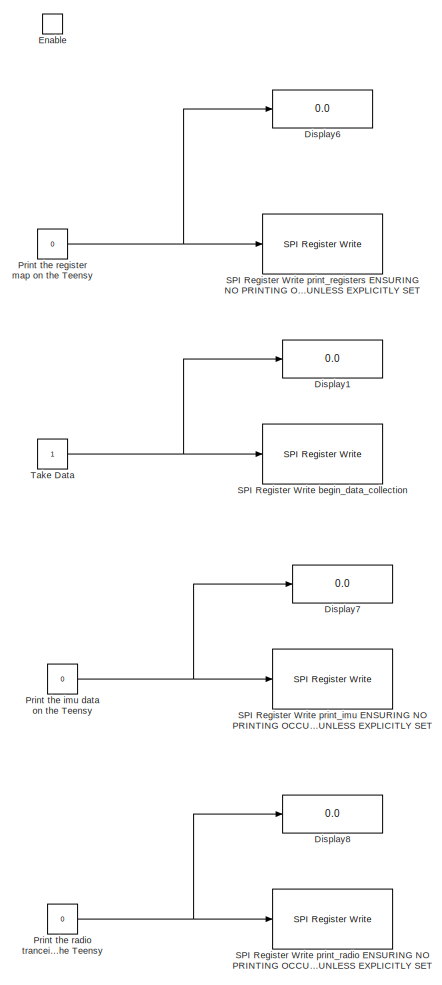
[diagram: Initialization Messages - part 1/2, full width, top band]
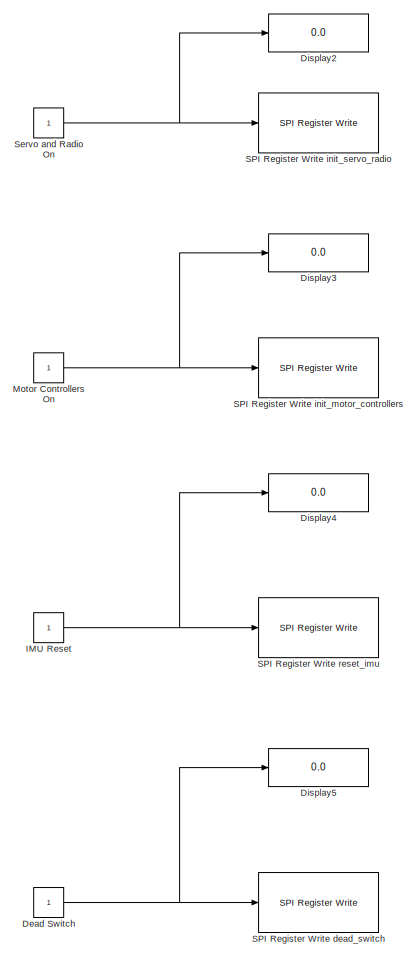
[diagram: Initialization Messages - part 2/2, full width, bottom band]
BLOCK [SubSystem] Initialization Messages
  Ports = [0, 0, 1]
  RequestExecContextInheritance = off
BLOCK [Constant] Initialization Messages/Dead Switch
  OutDataTypeStr = uint8
BLOCK [Display] Initialization Messages/Display1
  Decimation = 1
  Format = decimal (Stored Integer)
  Ports = [1]
BLOCK [Display] Initialization Messages/Display2
  Decimation = 1
  Format = decimal (Stored Integer)
  Ports = [1]
BLOCK [Display] Initialization Messages/Display3
  Decimation = 1
  Format = decimal (Stored Integer)
  Ports = [1]
BLOCK [Display] Initialization Messages/Display4
  Decimation = 1
  Format = decimal (Stored Integer)
  Ports = [1]
BLOCK [Display] Initialization Messages/Display5
  Decimation = 1
  Format = decimal (Stored Integer)
  Ports = [1]
BLOCK [Display] Initialization Messages/Display6
  Decimation = 1
  Format = decimal (Stored Integer)
  Ports = [1]
BLOCK [Display] Initialization Messages/Display7
  Decimation = 1
  Format = decimal (Stored Integer)
  Ports = [1]
BLOCK [Display] Initialization Messages/Display8
  Decimation = 1
  Format = decimal (Stored Integer)
  Ports = [1]
BLOCK [EnablePort] Initialization Messages/Enable
  Ports = []
BLOCK [Constant] Initialization Messages/IMU Reset
  OutDataTypeStr = uint8
BLOCK [Constant] Initialization Messages/Motor Controllers On
  OutDataTypeStr = uint8
BLOCK [Constant] Initialization Messages/Print the imu data on the Teensy
  OutDataTypeStr = uint8
  Value = 0
BLOCK [Constant] Initialization Messages/Print the radio tranceiver data on the Teensy
  OutDataTypeStr = uint8
  Value = 0
BLOCK [Constant] Initialization Messages/Print the register map on the Teensy
  OutDataTypeStr = uint8
  Value = 0
BLOCK [Reference] Initialization Messages/SPI Register Write begin_data_collection  REF=raspberrypilib/SPI Register Write
  Ports = [1]
  SourceBlock = raspberrypilib/SPI Register Write
  SourceProductBaseCode = RASPPI
  SourceProductName = Simulink Support Package for Raspberry Pi Hardware
  SourceType = codertarget.raspi.internal.SPIRegisterWrite
BLOCK [Reference] Initialization Messages/SPI Register Write dead_switch  REF=raspberrypilib/SPI Register Write
  Ports = [1]
  SourceBlock = raspberrypilib/SPI Register Write
  SourceProductBaseCode = RASPPI
  SourceProductName = Simulink Support Package for Raspberry Pi Hardware
  SourceType = codertarget.raspi.internal.SPIRegisterWrite
BLOCK [Reference] Initialization Messages/SPI Register Write init_motor_controllers  REF=raspberrypilib/SPI Register Write
  Ports = [1]
  SourceBlock = raspberrypilib/SPI Register Write
  SourceProductBaseCode = RASPPI
  SourceProductName = Simulink Support Package for Raspberry Pi Hardware
  SourceType = codertarget.raspi.internal.SPIRegisterWrite
BLOCK [Reference] Initialization Messages/SPI Register Write init_servo_radio  REF=raspberrypilib/SPI Register Write
  Ports = [1]
  SourceBlock = raspberrypilib/SPI Register Write
  SourceProductBaseCode = RASPPI
  SourceProductName = Simulink Support Package for Raspberry Pi Hardware
  SourceType = codertarget.raspi.internal.SPIRegisterWrite
BLOCK [Reference] Initialization Messages/SPI Register Write print_imu ENSURING NO PRINTING OCCURS DURING DYNAMIC OP UNLESS EXPLICITLY SET  REF=raspberrypilib/SPI Register Write
  Ports = [1]
  SourceBlock = raspberrypilib/SPI Register Write
  SourceProductBaseCode = RASPPI
  SourceProductName = Simulink Support Package for Raspberry Pi Hardware
  SourceType = codertarget.raspi.internal.SPIRegisterWrite
BLOCK [Reference] Initialization Messages/SPI Register Write print_radio ENSURING NO PRINTING OCCURS DURING DYNAMIC OP UNLESS EXPLICITLY SET  REF=raspberrypilib/SPI Register Write
  Ports = [1]
  SourceBlock = raspberrypilib/SPI Register Write
  SourceProductBaseCode = RASPPI
  SourceProductName = Simulink Support Package for Raspberry Pi Hardware
  SourceType = codertarget.raspi.internal.SPIRegisterWrite
BLOCK [Reference] Initialization Messages/SPI Register Write print_registers ENSURING NO PRINTING OCCURS DURING DYNAMIC OP UNLESS EXPLICITLY SET  REF=raspberrypilib/SPI Register Write
  Ports = [1]
  SourceBlock = raspberrypilib/SPI Register Write
  SourceProductBaseCode = RASPPI
  SourceProductName = Simulink Support Package for Raspberry Pi Hardware
  SourceType = codertarget.raspi.internal.SPIRegisterWrite
BLOCK [Reference] Initialization Messages/SPI Register Write reset_imu  REF=raspberrypilib/SPI Register Write
  Ports = [1]
  SourceBlock = raspberrypilib/SPI Register Write
  SourceProductBaseCode = RASPPI
  SourceProductName = Simulink Support Package for Raspberry Pi Hardware
  SourceType = codertarget.raspi.internal.SPIRegisterWrite
BLOCK [Constant] Initialization Messages/Servo and Radio On
  OutDataTypeStr = uint8
BLOCK [Constant] Initialization Messages/Take Data
  OutDataTypeStr = uint8
BLOCK [RelationalOperator] Relational Operator
  InputSameDT = off
  Operator = <=
  OutDataTypeStr = boolean
  Ports = [2, 1]
  RndMeth = Simplest
BLOCK [RelationalOperator] Relational Operator1
  InputSameDT = off
  Operator = >
  OutDataTypeStr = boolean
  Ports = [2, 1]
  RndMeth = Simplest
BLOCK [Scope] Scope
  Floating = off
  NumInputPorts = 1
  Ports = [1]
  ScopeSpecificationString = Simulink.scopes.TimeScopeBlockCfg('CurrentConfiguration', extmgr.ConfigurationSet(extmgr.Configuration('Core','General UI',true),extmgr.Configuration('Core','Source UI',true),extmgr.Configuration('Sources','WiredSimulink',true,'DataLoggingVariableName','ScopeData1'),extmgr.Configuration('Visuals','Time Domain',true,'SerializedDisplays',{struct('MinYLimReal','-0.125','MaxYLimReal','1.125','YLabelRe...<+1378ch>
BLOCK [Scope] Scope1
  Floating = off
  NumInputPorts = 1
  Ports = [1]
  ScopeSpecificationString = Simulink.scopes.TimeScopeBlockCfg('CurrentConfiguration', extmgr.ConfigurationSet(extmgr.Configuration('Core','General UI',true),extmgr.Configuration('Core','Source UI',true),extmgr.Configuration('Sources','WiredSimulink',true,'DataLoggingVariableName','ScopeData2'),extmgr.Configuration('Visuals','Time Domain',true),extmgr.Configuration('Tools','Plot Navigation',true),extmgr.Configuration('Tools',...<+40ch>
BLOCK [Switch] Switch
  InputSameDT = off
  SaturateOnIntegerOverflow = off
BLOCK [Switch] Switch1
  Criteria = u2 > Threshold
  InputSameDT = off
  SaturateOnIntegerOverflow = off
ANNOTATION Control System/Throttle and Steering Handler: Can have the holding down the trigger as a condition for leaving the initialization code. THEN if the trigger is ever released, the code will stop running...may not want this after all, perhaps not for controllers without any integral action
ANNOTATION Control System/Throttle and Steering Handler: DEAD SWITCH
ANNOTATION Control System/Throttle and Steering Handler: MANUAL MODE THROTTLE
ANNOTATION Control System/Throttle and Steering Handler: Note: If simulink loses connection (battery powered off) before the model is stopped, Simulink will freeze
LINE Clock1:1 -> Relational Operator1:1
LINE Clock:1 -> Relational Operator:1
LINE Constant1:1 -> Switch:1
LINE Constant2:1 -> Switch:3
LINE Constant3:1 -> Relational Operator1:2
LINE Constant4:1 -> Switch1:1
LINE Constant5:1 -> Switch1:3
LINE Constant:1 -> Relational Operator:2
LINE Control System/Black Box/Compensates for direction of spin (want positive to be rolling forward) :1 -> Control System/Black Box/Wheel Velocities:3
LINE Control System/Black Box/Compensates for direction of spin (want positive to be rolling forward):1 -> Control System/Black Box/Wheel Velocities:1
LINE Control System/Black Box/Data Type Conversion1:1 -> Control System/Black Box/throttle_left_front Write Message (Master --> Slave):1
LINE Control System/Black Box/Data Type Conversion2:1 -> Control System/Black Box/throttle_right_rear Write Message (Master --> Slave):1
LINE Control System/Black Box/Data Type Conversion3:1 -> Control System/Black Box/servo_out Write Message (Master --> Slave):1
LINE Control System/Black Box/Data Type Conversion4:1 -> Control System/Black Box/throttle_left_rear Write Message (Master --> Slave):1
LINE Control System/Black Box/Data Type Conversion:1 -> Control System/Black Box/throttle_right_front Write Message (Master --> Slave):1
LINE Control System/Black Box/SPI Master Transfer Read acc_x:1 -> Control System/Black Box/acc_x return message (Slave --> Master):1
LINE Control System/Black Box/SPI Master Transfer Read acc_y:1 -> Control System/Black Box/acc_y return message (Slave --> Master):1
LINE Control System/Black Box/SPI Master Transfer Read acc_z:1 -> Control System/Black Box/acc_z return message (Slave --> Master):1
LINE Control System/Black Box/SPI Master Transfer Read euler_heading:1 -> Control System/Black Box/euler_heading return message (Slave --> Master):1
LINE Control System/Black Box/SPI Master Transfer Read euler_pitch:1 -> Control System/Black Box/euler_pitch return message (Slave --> Master):1
LINE Control System/Black Box/SPI Master Transfer Read euler_roll:1 -> Control System/Black Box/euler_roll return message (Slave --> Master):1
LINE Control System/Black Box/SPI Master Transfer Read gyr_x:1 -> Control System/Black Box/gyr_x return message (Slave --> Master):1
LINE Control System/Black Box/SPI Master Transfer Read gyr_y:1 -> Control System/Black Box/gyr_y return message (Slave --> Master):1
LINE Control System/Black Box/SPI Master Transfer Read gyr_z:1 -> Control System/Black Box/gyr_z return message (Slave --> Master):1
LINE Control System/Black Box/SPI Master Transfer Read radio_steering:1 -> Control System/Black Box/radio_steering return message (Slave --> Master):1
LINE Control System/Black Box/SPI Master Transfer Read radio_throttle:1 -> Control System/Black Box/radio_throttle return message (Slave --> Master):1
LINE Control System/Black Box/SPI Master Transfer Read velocity_FL:1 -> Control System/Black Box/velocity_FL return message (Slave --> Master):1
LINE Control System/Black Box/SPI Master Transfer Read velocity_FR:1 -> Control System/Black Box/velocity_FR return message (Slave --> Master):1
LINE Control System/Black Box/SPI Master Transfer Read velocity_RL:1 -> Control System/Black Box/velocity_RL return message (Slave --> Master):1
LINE Control System/Black Box/SPI Master Transfer Read velocity_RR:1 -> Control System/Black Box/velocity_RR return message (Slave --> Master):1
LINE Control System/Black Box/acc_x Address Number:1 -> Control System/Black Box/acc_x read message (Master --> Slave):1
LINE Control System/Black Box/acc_x read message (Master --> Slave)/Inport:1 -> Control System/Black Box/acc_x read message (Master --> Slave)/Read Bit Set:1
LINE Control System/Black Box/acc_x read message (Master --> Slave)/Mux:1 -> Control System/Black Box/acc_x read message (Master --> Slave)/Out1:1
LINE Control System/Black Box/acc_x read message (Master --> Slave)/Read Bit Set:1 -> Control System/Black Box/acc_x read message (Master --> Slave)/Mux:1
LINE Control System/Black Box/acc_x read message (Master --> Slave)/uint8_t 1:1 -> Control System/Black Box/acc_x read message (Master --> Slave)/Mux:2
LINE Control System/Black Box/acc_x read message (Master --> Slave)/uint8_t 2:1 -> Control System/Black Box/acc_x read message (Master --> Slave)/Mux:3
LINE Control System/Black Box/acc_x read message (Master --> Slave)/uint8_t 3:1 -> Control System/Black Box/acc_x read message (Master --> Slave)/Mux:4
LINE Control System/Black Box/acc_x read message (Master --> Slave):1 -> Control System/Black Box/SPI Master Transfer Read acc_x:1
LINE Control System/Black Box/acc_x return message (Slave --> Master)/8 bytes concatinated converted to double:1 -> Control System/Black Box/acc_x return message (Slave --> Master)/Acceleration Int to Double Scale Factor:1
NET Control System/Black Box/acc_x return message (Slave --> Master)/Acceleration Int to Double Scale Factor:1 -> Control System/Black Box/acc_x return message (Slave --> Master)/Display1:1, Control System/Black Box/acc_x return message (Slave --> Master)/acc_x:1
LINE Control System/Black Box/acc_x return message (Slave --> Master)/Bit Concat:1 -> Control System/Black Box/acc_x return message (Slave --> Master)/Data Type Conversion:1
LINE Control System/Black Box/acc_x return message (Slave --> Master)/Data Type Conversion:1 -> Control System/Black Box/acc_x return message (Slave --> Master)/8 bytes concatinated converted to double:1
LINE Control System/Black Box/acc_x return message (Slave --> Master)/Demux:1 -> Control System/Black Box/acc_x return message (Slave --> Master)/Display:1
LINE Control System/Black Box/acc_x return message (Slave --> Master)/Demux:2 -> Control System/Black Box/acc_x return message (Slave --> Master)/Display2:1
LINE Control System/Black Box/acc_x return message (Slave --> Master)/Demux:3 -> Control System/Black Box/acc_x return message (Slave --> Master)/Bit Concat:2
LINE Control System/Black Box/acc_x return message (Slave --> Master)/Demux:4 -> Control System/Black Box/acc_x return message (Slave --> Master)/Bit Concat:1
NET Control System/Black Box/acc_x return message (Slave --> Master)/In1:1 -> Control System/Black Box/acc_x return message (Slave --> Master)/Bytes of the return message:1, Control System/Black Box/acc_x return message (Slave --> Master)/Demux:1
NET Control System/Black Box/acc_x return message (Slave --> Master):1 -> Control System/Black Box/Read Message7:1, Control System/Black Box/acc_x:1, Control System/Black Box/x-direction:1
LINE Control System/Black Box/acc_y Address Number:1 -> Control System/Black Box/acc_y read message (Master --> Slave):1
LINE Control System/Black Box/acc_y read message (Master --> Slave)/Inport:1 -> Control System/Black Box/acc_y read message (Master --> Slave)/Read Bit Set:1
LINE Control System/Black Box/acc_y read message (Master --> Slave)/Mux:1 -> Control System/Black Box/acc_y read message (Master --> Slave)/Out1:1
LINE Control System/Black Box/acc_y read message (Master --> Slave)/Read Bit Set:1 -> Control System/Black Box/acc_y read message (Master --> Slave)/Mux:1
LINE Control System/Black Box/acc_y read message (Master --> Slave)/uint8_t 1:1 -> Control System/Black Box/acc_y read message (Master --> Slave)/Mux:2
LINE Control System/Black Box/acc_y read message (Master --> Slave)/uint8_t 2:1 -> Control System/Black Box/acc_y read message (Master --> Slave)/Mux:3
LINE Control System/Black Box/acc_y read message (Master --> Slave)/uint8_t 3:1 -> Control System/Black Box/acc_y read message (Master --> Slave)/Mux:4
LINE Control System/Black Box/acc_y read message (Master --> Slave):1 -> Control System/Black Box/SPI Master Transfer Read acc_y:1
LINE Control System/Black Box/acc_y return message (Slave --> Master)/8 bytes concatinated converted to double:1 -> Control System/Black Box/acc_y return message (Slave --> Master)/Acceleration Int to Double Scale Factor:1
NET Control System/Black Box/acc_y return message (Slave --> Master)/Acceleration Int to Double Scale Factor:1 -> Control System/Black Box/acc_y return message (Slave --> Master)/Display1:1, Control System/Black Box/acc_y return message (Slave --> Master)/acc_y:1
LINE Control System/Black Box/acc_y return message (Slave --> Master)/Bit Concat:1 -> Control System/Black Box/acc_y return message (Slave --> Master)/Data Type Conversion:1
LINE Control System/Black Box/acc_y return message (Slave --> Master)/Data Type Conversion:1 -> Control System/Black Box/acc_y return message (Slave --> Master)/8 bytes concatinated converted to double:1
LINE Control System/Black Box/acc_y return message (Slave --> Master)/Demux:1 -> Control System/Black Box/acc_y return message (Slave --> Master)/Display:1
LINE Control System/Black Box/acc_y return message (Slave --> Master)/Demux:2 -> Control System/Black Box/acc_y return message (Slave --> Master)/Display2:1
LINE Control System/Black Box/acc_y return message (Slave --> Master)/Demux:3 -> Control System/Black Box/acc_y return message (Slave --> Master)/Bit Concat:2
LINE Control System/Black Box/acc_y return message (Slave --> Master)/Demux:4 -> Control System/Black Box/acc_y return message (Slave --> Master)/Bit Concat:1
NET Control System/Black Box/acc_y return message (Slave --> Master)/In1:1 -> Control System/Black Box/acc_y return message (Slave --> Master)/Bytes of the return message:1, Control System/Black Box/acc_y return message (Slave --> Master)/Demux:1
NET Control System/Black Box/acc_y return message (Slave --> Master):1 -> Control System/Black Box/Read Message8:1, Control System/Black Box/acc_y:1, Control System/Black Box/y-direction:1
LINE Control System/Black Box/acc_z Address Number:1 -> Control System/Black Box/acc_z read message (Master --> Slave):1
LINE Control System/Black Box/acc_z read message (Master --> Slave)/Inport:1 -> Control System/Black Box/acc_z read message (Master --> Slave)/Read Bit Set:1
LINE Control System/Black Box/acc_z read message (Master --> Slave)/Mux:1 -> Control System/Black Box/acc_z read message (Master --> Slave)/Out1:1
LINE Control System/Black Box/acc_z read message (Master --> Slave)/Read Bit Set:1 -> Control System/Black Box/acc_z read message (Master --> Slave)/Mux:1
LINE Control System/Black Box/acc_z read message (Master --> Slave)/uint8_t 1:1 -> Control System/Black Box/acc_z read message (Master --> Slave)/Mux:2
LINE Control System/Black Box/acc_z read message (Master --> Slave)/uint8_t 2:1 -> Control System/Black Box/acc_z read message (Master --> Slave)/Mux:3
LINE Control System/Black Box/acc_z read message (Master --> Slave)/uint8_t 3:1 -> Control System/Black Box/acc_z read message (Master --> Slave)/Mux:4
LINE Control System/Black Box/acc_z read message (Master --> Slave):1 -> Control System/Black Box/SPI Master Transfer Read acc_z:1
LINE Control System/Black Box/acc_z return message (Slave --> Master)/8 bytes concatinated converted to double:1 -> Control System/Black Box/acc_z return message (Slave --> Master)/Acceleration Int to Double Scale Factor:1
NET Control System/Black Box/acc_z return message (Slave --> Master)/Acceleration Int to Double Scale Factor:1 -> Control System/Black Box/acc_z return message (Slave --> Master)/Display1:1, Control System/Black Box/acc_z return message (Slave --> Master)/acc_z:1
LINE Control System/Black Box/acc_z return message (Slave --> Master)/Bit Concat:1 -> Control System/Black Box/acc_z return message (Slave --> Master)/Data Type Conversion:1
LINE Control System/Black Box/acc_z return message (Slave --> Master)/Data Type Conversion:1 -> Control System/Black Box/acc_z return message (Slave --> Master)/8 bytes concatinated converted to double:1
LINE Control System/Black Box/acc_z return message (Slave --> Master)/Demux:1 -> Control System/Black Box/acc_z return message (Slave --> Master)/Display:1
LINE Control System/Black Box/acc_z return message (Slave --> Master)/Demux:2 -> Control System/Black Box/acc_z return message (Slave --> Master)/Display2:1
LINE Control System/Black Box/acc_z return message (Slave --> Master)/Demux:3 -> Control System/Black Box/acc_z return message (Slave --> Master)/Bit Concat:2
LINE Control System/Black Box/acc_z return message (Slave --> Master)/Demux:4 -> Control System/Black Box/acc_z return message (Slave --> Master)/Bit Concat:1
NET Control System/Black Box/acc_z return message (Slave --> Master)/In1:1 -> Control System/Black Box/acc_z return message (Slave --> Master)/Bytes of the return message:1, Control System/Black Box/acc_z return message (Slave --> Master)/Demux:1
NET Control System/Black Box/acc_z return message (Slave --> Master):1 -> Control System/Black Box/Read Message9:1, Control System/Black Box/acc_z:1, Control System/Black Box/z-direction:1
LINE Control System/Black Box/bits//mNm    :1 -> Control System/Black Box/Data Type Conversion3:1
LINE Control System/Black Box/bits//mNm   :1 -> Control System/Black Box/Data Type Conversion4:1
LINE Control System/Black Box/bits//mNm  :1 -> Control System/Black Box/Data Type Conversion2:1
LINE Control System/Black Box/bits//mNm :1 -> Control System/Black Box/Data Type Conversion1:1
LINE Control System/Black Box/bits//mNm:1 -> Control System/Black Box/Data Type Conversion:1
LINE Control System/Black Box/euler_heading Address Number:1 -> Control System/Black Box/euler_heading read message (Master --> Slave):1
LINE Control System/Black Box/euler_heading read message (Master --> Slave)/Inport:1 -> Control System/Black Box/euler_heading read message (Master --> Slave)/Read Bit Set:1
LINE Control System/Black Box/euler_heading read message (Master --> Slave)/Mux:1 -> Control System/Black Box/euler_heading read message (Master --> Slave)/Out1:1
LINE Control System/Black Box/euler_heading read message (Master --> Slave)/Read Bit Set:1 -> Control System/Black Box/euler_heading read message (Master --> Slave)/Mux:1
LINE Control System/Black Box/euler_heading read message (Master --> Slave)/uint8_t  1:1 -> Control System/Black Box/euler_heading read message (Master --> Slave)/Mux:2
LINE Control System/Black Box/euler_heading read message (Master --> Slave)/uint8_t  2:1 -> Control System/Black Box/euler_heading read message (Master --> Slave)/Mux:3
LINE Control System/Black Box/euler_heading read message (Master --> Slave)/uint8_t  3:1 -> Control System/Black Box/euler_heading read message (Master --> Slave)/Mux:4
LINE Control System/Black Box/euler_heading read message (Master --> Slave):1 -> Control System/Black Box/SPI Master Transfer Read euler_heading:1
LINE Control System/Black Box/euler_heading return message (Slave --> Master)/Bit Concat:1 -> Control System/Black Box/euler_heading return message (Slave --> Master)/Data Type Conversion:1
NET Control System/Black Box/euler_heading return message (Slave --> Master)/Data Type Conversion:1 -> Control System/Black Box/euler_heading return message (Slave --> Master)/Scope:1, Control System/Black Box/euler_heading return message (Slave --> Master)/concatinate bytes and convert to double:1
LINE Control System/Black Box/euler_heading return message (Slave --> Master)/Demux:1 -> Control System/Black Box/euler_heading return message (Slave --> Master)/Display:1
LINE Control System/Black Box/euler_heading return message (Slave --> Master)/Demux:2 -> Control System/Black Box/euler_heading return message (Slave --> Master)/Display2:1
LINE Control System/Black Box/euler_heading return message (Slave --> Master)/Demux:3 -> Control System/Black Box/euler_heading return message (Slave --> Master)/Bit Concat:2
LINE Control System/Black Box/euler_heading return message (Slave --> Master)/Demux:4 -> Control System/Black Box/euler_heading return message (Slave --> Master)/Bit Concat:1
NET Control System/Black Box/euler_heading return message (Slave --> Master)/Euler Int to Double Scale Factor:1 -> Control System/Black Box/euler_heading return message (Slave --> Master)/Display1:1, Control System/Black Box/euler_heading return message (Slave --> Master)/euler_heading:1
NET Control System/Black Box/euler_heading return message (Slave --> Master)/In1:1 -> Control System/Black Box/euler_heading return message (Slave --> Master)/Bytes of the return message:1, Control System/Black Box/euler_heading return message (Slave --> Master)/Demux:1, Control System/Black Box/euler_heading return message (Slave --> Master)/Scope1:1
LINE Control System/Black Box/euler_heading return message (Slave --> Master)/concatinate bytes and convert to double:1 -> Control System/Black Box/euler_heading return message (Slave --> Master)/Euler Int to Double Scale Factor:1
NET Control System/Black Box/euler_heading return message (Slave --> Master):1 -> Control System/Black Box/Euler Angles:1, Control System/Black Box/Read Message2:1, Control System/Black Box/euler_heading:1
LINE Control System/Black Box/euler_pitch Address Number:1 -> Control System/Black Box/euler_pitch read message (Master --> Slave):1
LINE Control System/Black Box/euler_pitch read message (Master --> Slave)/Inport:1 -> Control System/Black Box/euler_pitch read message (Master --> Slave)/Read Bit Set:1
LINE Control System/Black Box/euler_pitch read message (Master --> Slave)/Mux:1 -> Control System/Black Box/euler_pitch read message (Master --> Slave)/Out1:1
LINE Control System/Black Box/euler_pitch read message (Master --> Slave)/Read Bit Set:1 -> Control System/Black Box/euler_pitch read message (Master --> Slave)/Mux:1
LINE Control System/Black Box/euler_pitch read message (Master --> Slave)/uint8_t 1:1 -> Control System/Black Box/euler_pitch read message (Master --> Slave)/Mux:2
LINE Control System/Black Box/euler_pitch read message (Master --> Slave)/uint8_t 2:1 -> Control System/Black Box/euler_pitch read message (Master --> Slave)/Mux:3
LINE Control System/Black Box/euler_pitch read message (Master --> Slave)/uint8_t 3:1 -> Control System/Black Box/euler_pitch read message (Master --> Slave)/Mux:4
LINE Control System/Black Box/euler_pitch read message (Master --> Slave):1 -> Control System/Black Box/SPI Master Transfer Read euler_pitch:1
LINE Control System/Black Box/euler_pitch return message (Slave --> Master)/8 bytes concatinated converted to double:1 -> Control System/Black Box/euler_pitch return message (Slave --> Master)/Euler Int to Double Scale Factor:1
LINE Control System/Black Box/euler_pitch return message (Slave --> Master)/Bit Concat:1 -> Control System/Black Box/euler_pitch return message (Slave --> Master)/Data Type Conversion:1
NET Control System/Black Box/euler_pitch return message (Slave --> Master)/Data Type Conversion:1 -> Control System/Black Box/euler_pitch return message (Slave --> Master)/8 bytes concatinated converted to double:1, Control System/Black Box/euler_pitch return message (Slave --> Master)/Scope:1
LINE Control System/Black Box/euler_pitch return message (Slave --> Master)/Demux:1 -> Control System/Black Box/euler_pitch return message (Slave --> Master)/Display:1
LINE Control System/Black Box/euler_pitch return message (Slave --> Master)/Demux:2 -> Control System/Black Box/euler_pitch return message (Slave --> Master)/Display2:1
LINE Control System/Black Box/euler_pitch return message (Slave --> Master)/Demux:3 -> Control System/Black Box/euler_pitch return message (Slave --> Master)/Bit Concat:2
LINE Control System/Black Box/euler_pitch return message (Slave --> Master)/Demux:4 -> Control System/Black Box/euler_pitch return message (Slave --> Master)/Bit Concat:1
NET Control System/Black Box/euler_pitch return message (Slave --> Master)/Euler Int to Double Scale Factor:1 -> Control System/Black Box/euler_pitch return message (Slave --> Master)/Display1:1, Control System/Black Box/euler_pitch return message (Slave --> Master)/euler_pitch:1
NET Control System/Black Box/euler_pitch return message (Slave --> Master)/In1:1 -> Control System/Black Box/euler_pitch return message (Slave --> Master)/Bytes of the return message:1, Control System/Black Box/euler_pitch return message (Slave --> Master)/Demux:1
NET Control System/Black Box/euler_pitch return message (Slave --> Master):1 -> Control System/Black Box/Euler Angles:3, Control System/Black Box/Read Message6:1, Control System/Black Box/euler_pitch:1
LINE Control System/Black Box/euler_roll Address Number:1 -> Control System/Black Box/euler_roll read message (Master --> Slave):1
LINE Control System/Black Box/euler_roll read message (Master --> Slave)/Inport:1 -> Control System/Black Box/euler_roll read message (Master --> Slave)/Read Bit Set:1
LINE Control System/Black Box/euler_roll read message (Master --> Slave)/Mux:1 -> Control System/Black Box/euler_roll read message (Master --> Slave)/Out1:1
LINE Control System/Black Box/euler_roll read message (Master --> Slave)/Read Bit Set:1 -> Control System/Black Box/euler_roll read message (Master --> Slave)/Mux:1
LINE Control System/Black Box/euler_roll read message (Master --> Slave)/uint8_t  1:1 -> Control System/Black Box/euler_roll read message (Master --> Slave)/Mux:2
LINE Control System/Black Box/euler_roll read message (Master --> Slave)/uint8_t  2:1 -> Control System/Black Box/euler_roll read message (Master --> Slave)/Mux:3
LINE Control System/Black Box/euler_roll read message (Master --> Slave)/uint8_t  3:1 -> Control System/Black Box/euler_roll read message (Master --> Slave)/Mux:4
LINE Control System/Black Box/euler_roll read message (Master --> Slave):1 -> Control System/Black Box/SPI Master Transfer Read euler_roll:1
LINE Control System/Black Box/euler_roll return message (Slave --> Master)/8 bytes concatinated converted to double:1 -> Control System/Black Box/euler_roll return message (Slave --> Master)/Euler Int to Double Scale Factor:1
LINE Control System/Black Box/euler_roll return message (Slave --> Master)/Bit Concat:1 -> Control System/Black Box/euler_roll return message (Slave --> Master)/Data Type Conversion:1
NET Control System/Black Box/euler_roll return message (Slave --> Master)/Data Type Conversion:1 -> Control System/Black Box/euler_roll return message (Slave --> Master)/8 bytes concatinated converted to double:1, Control System/Black Box/euler_roll return message (Slave --> Master)/Scope:1
LINE Control System/Black Box/euler_roll return message (Slave --> Master)/Demux:1 -> Control System/Black Box/euler_roll return message (Slave --> Master)/Display:1
LINE Control System/Black Box/euler_roll return message (Slave --> Master)/Demux:2 -> Control System/Black Box/euler_roll return message (Slave --> Master)/Display2:1
LINE Control System/Black Box/euler_roll return message (Slave --> Master)/Demux:3 -> Control System/Black Box/euler_roll return message (Slave --> Master)/Bit Concat:2
LINE Control System/Black Box/euler_roll return message (Slave --> Master)/Demux:4 -> Control System/Black Box/euler_roll return message (Slave --> Master)/Bit Concat:1
NET Control System/Black Box/euler_roll return message (Slave --> Master)/Euler Int to Double Scale Factor:1 -> Control System/Black Box/euler_roll return message (Slave --> Master)/Display1:1, Control System/Black Box/euler_roll return message (Slave --> Master)/euler_roll:1
NET Control System/Black Box/euler_roll return message (Slave --> Master)/In1:1 -> Control System/Black Box/euler_roll return message (Slave --> Master)/Bytes of the return message:1, Control System/Black Box/euler_roll return message (Slave --> Master)/Demux:1
NET Control System/Black Box/euler_roll return message (Slave --> Master):1 -> Control System/Black Box/Euler Angles:2, Control System/Black Box/Read Message3:1, Control System/Black Box/euler_roll:1
LINE Control System/Black Box/gyr_x Address Number:1 -> Control System/Black Box/gyr_x read message (Master --> Slave):1
LINE Control System/Black Box/gyr_x read message (Master --> Slave)/Inport:1 -> Control System/Black Box/gyr_x read message (Master --> Slave)/Read Bit Set:1
LINE Control System/Black Box/gyr_x read message (Master --> Slave)/Mux:1 -> Control System/Black Box/gyr_x read message (Master --> Slave)/Out1:1
LINE Control System/Black Box/gyr_x read message (Master --> Slave)/Read Bit Set:1 -> Control System/Black Box/gyr_x read message (Master --> Slave)/Mux:1
LINE Control System/Black Box/gyr_x read message (Master --> Slave)/uint8_t 1:1 -> Control System/Black Box/gyr_x read message (Master --> Slave)/Mux:2
LINE Control System/Black Box/gyr_x read message (Master --> Slave)/uint8_t 2:1 -> Control System/Black Box/gyr_x read message (Master --> Slave)/Mux:3
LINE Control System/Black Box/gyr_x read message (Master --> Slave)/uint8_t 3:1 -> Control System/Black Box/gyr_x read message (Master --> Slave)/Mux:4
LINE Control System/Black Box/gyr_x read message (Master --> Slave):1 -> Control System/Black Box/SPI Master Transfer Read gyr_x:1
LINE Control System/Black Box/gyr_x return message (Slave --> Master)/8 bytes concatinated converted to double:1 -> Control System/Black Box/gyr_x return message (Slave --> Master)/Gyroscope Int to Double Scale Factor:1
LINE Control System/Black Box/gyr_x return message (Slave --> Master)/Bit Concat:1 -> Control System/Black Box/gyr_x return message (Slave --> Master)/Data Type Conversion:1
LINE Control System/Black Box/gyr_x return message (Slave --> Master)/Data Type Conversion:1 -> Control System/Black Box/gyr_x return message (Slave --> Master)/8 bytes concatinated converted to double:1
LINE Control System/Black Box/gyr_x return message (Slave --> Master)/Demux:1 -> Control System/Black Box/gyr_x return message (Slave --> Master)/Display:1
LINE Control System/Black Box/gyr_x return message (Slave --> Master)/Demux:2 -> Control System/Black Box/gyr_x return message (Slave --> Master)/Display2:1
LINE Control System/Black Box/gyr_x return message (Slave --> Master)/Demux:3 -> Control System/Black Box/gyr_x return message (Slave --> Master)/Bit Concat:2
LINE Control System/Black Box/gyr_x return message (Slave --> Master)/Demux:4 -> Control System/Black Box/gyr_x return message (Slave --> Master)/Bit Concat:1
NET Control System/Black Box/gyr_x return message (Slave --> Master)/Gyroscope Int to Double Scale Factor:1 -> Control System/Black Box/gyr_x return message (Slave --> Master)/Display1:1, Control System/Black Box/gyr_x return message (Slave --> Master)/gyr_x:1
NET Control System/Black Box/gyr_x return message (Slave --> Master)/In1:1 -> Control System/Black Box/gyr_x return message (Slave --> Master)/Bytes of the return message:1, Control System/Black Box/gyr_x return message (Slave --> Master)/Demux:1
NET Control System/Black Box/gyr_x return message (Slave --> Master):1 -> Control System/Black Box/Read Message10:1, Control System/Black Box/gyr_x:1, Control System/Black Box/x-direction:2
LINE Control System/Black Box/gyr_y Address Number :1 -> Control System/Black Box/gyr_y read message (Master --> Slave):1
LINE Control System/Black Box/gyr_y read message (Master --> Slave)/Inport:1 -> Control System/Black Box/gyr_y read message (Master --> Slave)/Read Bit Set:1
LINE Control System/Black Box/gyr_y read message (Master --> Slave)/Mux:1 -> Control System/Black Box/gyr_y read message (Master --> Slave)/Out1:1
LINE Control System/Black Box/gyr_y read message (Master --> Slave)/Read Bit Set:1 -> Control System/Black Box/gyr_y read message (Master --> Slave)/Mux:1
LINE Control System/Black Box/gyr_y read message (Master --> Slave)/uint8_t 1:1 -> Control System/Black Box/gyr_y read message (Master --> Slave)/Mux:2
LINE Control System/Black Box/gyr_y read message (Master --> Slave)/uint8_t 2:1 -> Control System/Black Box/gyr_y read message (Master --> Slave)/Mux:3
LINE Control System/Black Box/gyr_y read message (Master --> Slave)/uint8_t 3:1 -> Control System/Black Box/gyr_y read message (Master --> Slave)/Mux:4
LINE Control System/Black Box/gyr_y read message (Master --> Slave):1 -> Control System/Black Box/SPI Master Transfer Read gyr_y:1
LINE Control System/Black Box/gyr_y return message (Slave --> Master)/8 bytes concatinated converted to double:1 -> Control System/Black Box/gyr_y return message (Slave --> Master)/Gyroscope Int to Double Scale Factor:1
LINE Control System/Black Box/gyr_y return message (Slave --> Master)/Bit Concat:1 -> Control System/Black Box/gyr_y return message (Slave --> Master)/Data Type Conversion:1
LINE Control System/Black Box/gyr_y return message (Slave --> Master)/Data Type Conversion:1 -> Control System/Black Box/gyr_y return message (Slave --> Master)/8 bytes concatinated converted to double:1
LINE Control System/Black Box/gyr_y return message (Slave --> Master)/Demux:1 -> Control System/Black Box/gyr_y return message (Slave --> Master)/Display:1
LINE Control System/Black Box/gyr_y return message (Slave --> Master)/Demux:2 -> Control System/Black Box/gyr_y return message (Slave --> Master)/Display2:1
LINE Control System/Black Box/gyr_y return message (Slave --> Master)/Demux:3 -> Control System/Black Box/gyr_y return message (Slave --> Master)/Bit Concat:2
LINE Control System/Black Box/gyr_y return message (Slave --> Master)/Demux:4 -> Control System/Black Box/gyr_y return message (Slave --> Master)/Bit Concat:1
NET Control System/Black Box/gyr_y return message (Slave --> Master)/Gyroscope Int to Double Scale Factor:1 -> Control System/Black Box/gyr_y return message (Slave --> Master)/Display1:1, Control System/Black Box/gyr_y return message (Slave --> Master)/gyr_y:1
NET Control System/Black Box/gyr_y return message (Slave --> Master)/In1:1 -> Control System/Black Box/gyr_y return message (Slave --> Master)/Bytes of the return message:1, Control System/Black Box/gyr_y return message (Slave --> Master)/Demux:1
NET Control System/Black Box/gyr_y return message (Slave --> Master):1 -> Control System/Black Box/Read Message11:1, Control System/Black Box/gyr_y:1, Control System/Black Box/y-direction:2
LINE Control System/Black Box/gyr_z Address Number:1 -> Control System/Black Box/gyr_z read message (Master --> Slave):1
LINE Control System/Black Box/gyr_z read message (Master --> Slave)/Inport:1 -> Control System/Black Box/gyr_z read message (Master --> Slave)/Read Bit Set:1
LINE Control System/Black Box/gyr_z read message (Master --> Slave)/Mux:1 -> Control System/Black Box/gyr_z read message (Master --> Slave)/Out1:1
LINE Control System/Black Box/gyr_z read message (Master --> Slave)/Read Bit Set:1 -> Control System/Black Box/gyr_z read message (Master --> Slave)/Mux:1
LINE Control System/Black Box/gyr_z read message (Master --> Slave)/uint8_t 1:1 -> Control System/Black Box/gyr_z read message (Master --> Slave)/Mux:2
LINE Control System/Black Box/gyr_z read message (Master --> Slave)/uint8_t 2:1 -> Control System/Black Box/gyr_z read message (Master --> Slave)/Mux:3
LINE Control System/Black Box/gyr_z read message (Master --> Slave)/uint8_t 3:1 -> Control System/Black Box/gyr_z read message (Master --> Slave)/Mux:4
LINE Control System/Black Box/gyr_z read message (Master --> Slave):1 -> Control System/Black Box/SPI Master Transfer Read gyr_z:1
LINE Control System/Black Box/gyr_z return message (Slave --> Master)/8 bytes concatinated converted to double:1 -> Control System/Black Box/gyr_z return message (Slave --> Master)/Gyroscope Int to Double Scale Factor:1
LINE Control System/Black Box/gyr_z return message (Slave --> Master)/Bit Concat:1 -> Control System/Black Box/gyr_z return message (Slave --> Master)/Data Type Conversion:1
LINE Control System/Black Box/gyr_z return message (Slave --> Master)/Data Type Conversion:1 -> Control System/Black Box/gyr_z return message (Slave --> Master)/8 bytes concatinated converted to double:1
LINE Control System/Black Box/gyr_z return message (Slave --> Master)/Demux:1 -> Control System/Black Box/gyr_z return message (Slave --> Master)/Display:1
LINE Control System/Black Box/gyr_z return message (Slave --> Master)/Demux:2 -> Control System/Black Box/gyr_z return message (Slave --> Master)/Display2:1
LINE Control System/Black Box/gyr_z return message (Slave --> Master)/Demux:3 -> Control System/Black Box/gyr_z return message (Slave --> Master)/Bit Concat:2
LINE Control System/Black Box/gyr_z return message (Slave --> Master)/Demux:4 -> Control System/Black Box/gyr_z return message (Slave --> Master)/Bit Concat:1
NET Control System/Black Box/gyr_z return message (Slave --> Master)/Gyroscope Int to Double Scale Factor:1 -> Control System/Black Box/gyr_z return message (Slave --> Master)/Display1:1, Control System/Black Box/gyr_z return message (Slave --> Master)/gyr_z:1
NET Control System/Black Box/gyr_z return message (Slave --> Master)/In1:1 -> Control System/Black Box/gyr_z return message (Slave --> Master)/Bytes of the return message:1, Control System/Black Box/gyr_z return message (Slave --> Master)/Demux:1
NET Control System/Black Box/gyr_z return message (Slave --> Master):1 -> Control System/Black Box/Read Message12:1, Control System/Black Box/gyr_z:1, Control System/Black Box/z-direction:2
LINE Control System/Black Box/radio_steering Address Number:1 -> Control System/Black Box/radio_steering read message (Master --> Slave):1
LINE Control System/Black Box/radio_steering read message (Master --> Slave)/Inport:1 -> Control System/Black Box/radio_steering read message (Master --> Slave)/Read Bit Set:1
LINE Control System/Black Box/radio_steering read message (Master --> Slave)/Mux:1 -> Control System/Black Box/radio_steering read message (Master --> Slave)/Out1:1
LINE Control System/Black Box/radio_steering read message (Master --> Slave)/Read Bit Set:1 -> Control System/Black Box/radio_steering read message (Master --> Slave)/Mux:1
LINE Control System/Black Box/radio_steering read message (Master --> Slave)/uint8_t 1:1 -> Control System/Black Box/radio_steering read message (Master --> Slave)/Mux:2
LINE Control System/Black Box/radio_steering read message (Master --> Slave)/uint8_t 2:1 -> Control System/Black Box/radio_steering read message (Master --> Slave)/Mux:3
LINE Control System/Black Box/radio_steering read message (Master --> Slave)/uint8_t 3:1 -> Control System/Black Box/radio_steering read message (Master --> Slave)/Mux:4
LINE Control System/Black Box/radio_steering read message (Master --> Slave):1 -> Control System/Black Box/SPI Master Transfer Read radio_steering:1
NET Control System/Black Box/radio_steering return message (Slave --> Master)/8 bytes concatinated converted to double:1 -> Control System/Black Box/radio_steering return message (Slave --> Master)/Display1:1, Control System/Black Box/radio_steering return message (Slave --> Master)/radio_steering:1
LINE Control System/Black Box/radio_steering return message (Slave --> Master)/Bit Concat:1 -> Control System/Black Box/radio_steering return message (Slave --> Master)/Data Type Conversion:1
LINE Control System/Black Box/radio_steering return message (Slave --> Master)/Data Type Conversion:1 -> Control System/Black Box/radio_steering return message (Slave --> Master)/8 bytes concatinated converted to double:1
LINE Control System/Black Box/radio_steering return message (Slave --> Master)/Demux:1 -> Control System/Black Box/radio_steering return message (Slave --> Master)/Display:1
LINE Control System/Black Box/radio_steering return message (Slave --> Master)/Demux:2 -> Control System/Black Box/radio_steering return message (Slave --> Master)/Display2:1
LINE Control System/Black Box/radio_steering return message (Slave --> Master)/Demux:3 -> Control System/Black Box/radio_steering return message (Slave --> Master)/Bit Concat:2
LINE Control System/Black Box/radio_steering return message (Slave --> Master)/Demux:4 -> Control System/Black Box/radio_steering return message (Slave --> Master)/Bit Concat:1
NET Control System/Black Box/radio_steering return message (Slave --> Master)/In1:1 -> Control System/Black Box/radio_steering return message (Slave --> Master)/Bytes of the return message:1, Control System/Black Box/radio_steering return message (Slave --> Master)/Demux:1
NET Control System/Black Box/radio_steering return message (Slave --> Master):1 -> Control System/Black Box/Radio SIgnals2:2, Control System/Black Box/Read Message15:1, Control System/Black Box/radio_steering:1
LINE Control System/Black Box/radio_throttle Address Number :1 -> Control System/Black Box/radio_throttle read message (Master --> Slave):1
LINE Control System/Black Box/radio_throttle read message (Master --> Slave)/Inport:1 -> Control System/Black Box/radio_throttle read message (Master --> Slave)/Read Bit Set:1
LINE Control System/Black Box/radio_throttle read message (Master --> Slave)/Mux:1 -> Control System/Black Box/radio_throttle read message (Master --> Slave)/Out1:1
LINE Control System/Black Box/radio_throttle read message (Master --> Slave)/Read Bit Set:1 -> Control System/Black Box/radio_throttle read message (Master --> Slave)/Mux:1
LINE Control System/Black Box/radio_throttle read message (Master --> Slave)/uint8_t 1:1 -> Control System/Black Box/radio_throttle read message (Master --> Slave)/Mux:2
LINE Control System/Black Box/radio_throttle read message (Master --> Slave)/uint8_t 2:1 -> Control System/Black Box/radio_throttle read message (Master --> Slave)/Mux:3
LINE Control System/Black Box/radio_throttle read message (Master --> Slave)/uint8_t 3:1 -> Control System/Black Box/radio_throttle read message (Master --> Slave)/Mux:4
LINE Control System/Black Box/radio_throttle read message (Master --> Slave):1 -> Control System/Black Box/SPI Master Transfer Read radio_throttle:1
NET Control System/Black Box/radio_throttle return message (Slave --> Master)/8 bytes concatinated converted to double:1 -> Control System/Black Box/radio_throttle return message (Slave --> Master)/Display1:1, Control System/Black Box/radio_throttle return message (Slave --> Master)/radio_throttle:1
LINE Control System/Black Box/radio_throttle return message (Slave --> Master)/Bit Concat:1 -> Control System/Black Box/radio_throttle return message (Slave --> Master)/Data Type Conversion:1
LINE Control System/Black Box/radio_throttle return message (Slave --> Master)/Data Type Conversion:1 -> Control System/Black Box/radio_throttle return message (Slave --> Master)/8 bytes concatinated converted to double:1
LINE Control System/Black Box/radio_throttle return message (Slave --> Master)/Demux:1 -> Control System/Black Box/radio_throttle return message (Slave --> Master)/Display:1
LINE Control System/Black Box/radio_throttle return message (Slave --> Master)/Demux:2 -> Control System/Black Box/radio_throttle return message (Slave --> Master)/Display2:1
LINE Control System/Black Box/radio_throttle return message (Slave --> Master)/Demux:3 -> Control System/Black Box/radio_throttle return message (Slave --> Master)/Bit Concat:2
LINE Control System/Black Box/radio_throttle return message (Slave --> Master)/Demux:4 -> Control System/Black Box/radio_throttle return message (Slave --> Master)/Bit Concat:1
NET Control System/Black Box/radio_throttle return message (Slave --> Master)/In1:1 -> Control System/Black Box/radio_throttle return message (Slave --> Master)/Bytes of the return message:1, Control System/Black Box/radio_throttle return message (Slave --> Master)/Demux:1
NET Control System/Black Box/radio_throttle return message (Slave --> Master):1 -> Control System/Black Box/Radio SIgnals2:1, Control System/Black Box/Read Message14:1, Control System/Black Box/radio_throttle:1
LINE Control System/Black Box/servo_out Write Message (Master --> Slave)/Bit Slice2:1 -> Control System/Black Box/servo_out Write Message (Master --> Slave)/Mux:2
LINE Control System/Black Box/servo_out Write Message (Master --> Slave)/Bit Slice3:1 -> Control System/Black Box/servo_out Write Message (Master --> Slave)/Mux:1
NET Control System/Black Box/servo_out Write Message (Master --> Slave)/In1:1 -> Control System/Black Box/servo_out Write Message (Master --> Slave)/Bit Slice2:1, Control System/Black Box/servo_out Write Message (Master --> Slave)/Bit Slice3:1, Control System/Black Box/servo_out Write Message (Master --> Slave)/Display5:1
LINE Control System/Black Box/servo_out Write Message (Master --> Slave)/Mux:1 -> Control System/Black Box/servo_out Write Message (Master --> Slave)/Out1:1
NET Control System/Black Box/servo_out Write Message (Master --> Slave):1 -> Control System/Black Box/Display5:1, Control System/Black Box/SPI Register Write servo_out :1
LINE Control System/Black Box/servo_out:1 -> Control System/Black Box/bits//mNm    :1
LINE Control System/Black Box/throttle_left_front Write Message (Master --> Slave)/Bit Slice1:1 -> Control System/Black Box/throttle_left_front Write Message (Master --> Slave)/Mux:1
NET Control System/Black Box/throttle_left_front Write Message (Master --> Slave)/Bit Slice:1 -> Control System/Black Box/throttle_left_front Write Message (Master --> Slave)/Display4:1, Control System/Black Box/throttle_left_front Write Message (Master --> Slave)/Mux:2
NET Control System/Black Box/throttle_left_front Write Message (Master --> Slave)/In1:1 -> Control System/Black Box/throttle_left_front Write Message (Master --> Slave)/Bit Slice1:1, Control System/Black Box/throttle_left_front Write Message (Master --> Slave)/Bit Slice:1
LINE Control System/Black Box/throttle_left_front Write Message (Master --> Slave)/Mux:1 -> Control System/Black Box/throttle_left_front Write Message (Master --> Slave)/Output:1
NET Control System/Black Box/throttle_left_front Write Message (Master --> Slave):1 -> Control System/Black Box/Display3:1, Control System/Black Box/SPI Register Write throttle_left_front:1
LINE Control System/Black Box/throttle_left_front:1 -> Control System/Black Box/bits//mNm :1
LINE Control System/Black Box/throttle_left_rear Write Message (Master --> Slave)/Bit Slice1:1 -> Control System/Black Box/throttle_left_rear Write Message (Master --> Slave)/Mux:1
NET Control System/Black Box/throttle_left_rear Write Message (Master --> Slave)/Bit Slice:1 -> Control System/Black Box/throttle_left_rear Write Message (Master --> Slave)/Display4:1, Control System/Black Box/throttle_left_rear Write Message (Master --> Slave)/Mux:2
NET Control System/Black Box/throttle_left_rear Write Message (Master --> Slave)/In1:1 -> Control System/Black Box/throttle_left_rear Write Message (Master --> Slave)/Bit Slice1:1, Control System/Black Box/throttle_left_rear Write Message (Master --> Slave)/Bit Slice:1
LINE Control System/Black Box/throttle_left_rear Write Message (Master --> Slave)/Mux:1 -> Control System/Black Box/throttle_left_rear Write Message (Master --> Slave)/Output:1
NET Control System/Black Box/throttle_left_rear Write Message (Master --> Slave):1 -> Control System/Black Box/Display1:1, Control System/Black Box/SPI Register Write throttle_left_rear:1
LINE Control System/Black Box/throttle_left_rear:1 -> Control System/Black Box/bits//mNm   :1
LINE Control System/Black Box/throttle_right_front Write Message (Master --> Slave)/Bit Slice1:1 -> Control System/Black Box/throttle_right_front Write Message (Master --> Slave)/Mux:1
NET Control System/Black Box/throttle_right_front Write Message (Master --> Slave)/Bit Slice:1 -> Control System/Black Box/throttle_right_front Write Message (Master --> Slave)/Display4:1, Control System/Black Box/throttle_right_front Write Message (Master --> Slave)/Mux:2
NET Control System/Black Box/throttle_right_front Write Message (Master --> Slave)/In1:1 -> Control System/Black Box/throttle_right_front Write Message (Master --> Slave)/Bit Slice1:1, Control System/Black Box/throttle_right_front Write Message (Master --> Slave)/Bit Slice:1
LINE Control System/Black Box/throttle_right_front Write Message (Master --> Slave)/Mux:1 -> Control System/Black Box/throttle_right_front Write Message (Master --> Slave)/Output:1
NET Control System/Black Box/throttle_right_front Write Message (Master --> Slave):1 -> Control System/Black Box/Display2:1, Control System/Black Box/SPI Register Write throttle_right_front:1, Control System/Black Box/Scope:1
LINE Control System/Black Box/throttle_right_front:1 -> Control System/Black Box/bits//mNm:1
LINE Control System/Black Box/throttle_right_rear Write Message (Master --> Slave)/Bit Slice1:1 -> Control System/Black Box/throttle_right_rear Write Message (Master --> Slave)/Mux:1
NET Control System/Black Box/throttle_right_rear Write Message (Master --> Slave)/Bit Slice:1 -> Control System/Black Box/throttle_right_rear Write Message (Master --> Slave)/Display4:1, Control System/Black Box/throttle_right_rear Write Message (Master --> Slave)/Mux:2
NET Control System/Black Box/throttle_right_rear Write Message (Master --> Slave)/In1:1 -> Control System/Black Box/throttle_right_rear Write Message (Master --> Slave)/Bit Slice1:1, Control System/Black Box/throttle_right_rear Write Message (Master --> Slave)/Bit Slice:1
LINE Control System/Black Box/throttle_right_rear Write Message (Master --> Slave)/Mux:1 -> Control System/Black Box/throttle_right_rear Write Message (Master --> Slave)/Output:1
NET Control System/Black Box/throttle_right_rear Write Message (Master --> Slave):1 -> Control System/Black Box/Display4:1, Control System/Black Box/SPI Register Write throttle_right_rear:1
LINE Control System/Black Box/throttle_right_rear:1 -> Control System/Black Box/bits//mNm  :1
LINE Control System/Black Box/velocity_FL Address Number:1 -> Control System/Black Box/velocity_FL read message (Master --> Slave):1
LINE Control System/Black Box/velocity_FL read message (Master --> Slave)/Inport:1 -> Control System/Black Box/velocity_FL read message (Master --> Slave)/Read Bit Set:1
LINE Control System/Black Box/velocity_FL read message (Master --> Slave)/Mux:1 -> Control System/Black Box/velocity_FL read message (Master --> Slave)/Out1:1
LINE Control System/Black Box/velocity_FL read message (Master --> Slave)/Read Bit Set:1 -> Control System/Black Box/velocity_FL read message (Master --> Slave)/Mux:1
LINE Control System/Black Box/velocity_FL read message (Master --> Slave)/uint8_t 1:1 -> Control System/Black Box/velocity_FL read message (Master --> Slave)/Mux:2
LINE Control System/Black Box/velocity_FL read message (Master --> Slave)/uint8_t 2:1 -> Control System/Black Box/velocity_FL read message (Master --> Slave)/Mux:3
LINE Control System/Black Box/velocity_FL read message (Master --> Slave)/uint8_t 3:1 -> Control System/Black Box/velocity_FL read message (Master --> Slave)/Mux:4
LINE Control System/Black Box/velocity_FL read message (Master --> Slave):1 -> Control System/Black Box/SPI Master Transfer Read velocity_FL:1
NET Control System/Black Box/velocity_FL return message (Slave --> Master)/8 bytes concatinated converted to double:1 -> Control System/Black Box/velocity_FL return message (Slave --> Master)/Display1:1, Control System/Black Box/velocity_FL return message (Slave --> Master)/velocity_FL:1
LINE Control System/Black Box/velocity_FL return message (Slave --> Master)/Bit Concat:1 -> Control System/Black Box/velocity_FL return message (Slave --> Master)/Data Type Conversion:1
LINE Control System/Black Box/velocity_FL return message (Slave --> Master)/Data Type Conversion:1 -> Control System/Black Box/velocity_FL return message (Slave --> Master)/8 bytes concatinated converted to double:1
LINE Control System/Black Box/velocity_FL return message (Slave --> Master)/Demux:1 -> Control System/Black Box/velocity_FL return message (Slave --> Master)/Display:1
LINE Control System/Black Box/velocity_FL return message (Slave --> Master)/Demux:2 -> Control System/Black Box/velocity_FL return message (Slave --> Master)/Display2:1
LINE Control System/Black Box/velocity_FL return message (Slave --> Master)/Demux:3 -> Control System/Black Box/velocity_FL return message (Slave --> Master)/Bit Concat:2
LINE Control System/Black Box/velocity_FL return message (Slave --> Master)/Demux:4 -> Control System/Black Box/velocity_FL return message (Slave --> Master)/Bit Concat:1
NET Control System/Black Box/velocity_FL return message (Slave --> Master)/In1:1 -> Control System/Black Box/velocity_FL return message (Slave --> Master)/Bytes of the return message:1, Control System/Black Box/velocity_FL return message (Slave --> Master)/Demux:1
NET Control System/Black Box/velocity_FL return message (Slave --> Master):1 -> Control System/Black Box/Read Message5:1, Control System/Black Box/Wheel Velocities:2, Control System/Black Box/velocity_FL:1
LINE Control System/Black Box/velocity_FR Address Number :1 -> Control System/Black Box/velocity_FR read message (Master --> Slave):1
LINE Control System/Black Box/velocity_FR read message (Master --> Slave)/Inport:1 -> Control System/Black Box/velocity_FR read message (Master --> Slave)/Read Bit Set:1
LINE Control System/Black Box/velocity_FR read message (Master --> Slave)/Mux:1 -> Control System/Black Box/velocity_FR read message (Master --> Slave)/Out1:1
LINE Control System/Black Box/velocity_FR read message (Master --> Slave)/Read Bit Set:1 -> Control System/Black Box/velocity_FR read message (Master --> Slave)/Mux:1
LINE Control System/Black Box/velocity_FR read message (Master --> Slave)/uint8_t 1:1 -> Control System/Black Box/velocity_FR read message (Master --> Slave)/Mux:2
LINE Control System/Black Box/velocity_FR read message (Master --> Slave)/uint8_t 2:1 -> Control System/Black Box/velocity_FR read message (Master --> Slave)/Mux:3
LINE Control System/Black Box/velocity_FR read message (Master --> Slave)/uint8_t 3:1 -> Control System/Black Box/velocity_FR read message (Master --> Slave)/Mux:4
LINE Control System/Black Box/velocity_FR read message (Master --> Slave):1 -> Control System/Black Box/SPI Master Transfer Read velocity_FR:1
NET Control System/Black Box/velocity_FR return message (Slave --> Master)/8 bytes concatinated converted to double:1 -> Control System/Black Box/velocity_FR return message (Slave --> Master)/Display1:1, Control System/Black Box/velocity_FR return message (Slave --> Master)/velocity_FR:1
LINE Control System/Black Box/velocity_FR return message (Slave --> Master)/Bit Concat:1 -> Control System/Black Box/velocity_FR return message (Slave --> Master)/Data Type Conversion:1
LINE Control System/Black Box/velocity_FR return message (Slave --> Master)/Data Type Conversion:1 -> Control System/Black Box/velocity_FR return message (Slave --> Master)/8 bytes concatinated converted to double:1
LINE Control System/Black Box/velocity_FR return message (Slave --> Master)/Demux:1 -> Control System/Black Box/velocity_FR return message (Slave --> Master)/Display:1
LINE Control System/Black Box/velocity_FR return message (Slave --> Master)/Demux:2 -> Control System/Black Box/velocity_FR return message (Slave --> Master)/Display2:1
LINE Control System/Black Box/velocity_FR return message (Slave --> Master)/Demux:3 -> Control System/Black Box/velocity_FR return message (Slave --> Master)/Bit Concat:2
LINE Control System/Black Box/velocity_FR return message (Slave --> Master)/Demux:4 -> Control System/Black Box/velocity_FR return message (Slave --> Master)/Bit Concat:1
NET Control System/Black Box/velocity_FR return message (Slave --> Master)/In1:1 -> Control System/Black Box/velocity_FR return message (Slave --> Master)/Bytes of the return message:1, Control System/Black Box/velocity_FR return message (Slave --> Master)/Demux:1
NET Control System/Black Box/velocity_FR return message (Slave --> Master):1 -> Control System/Black Box/Compensates for direction of spin (want positive to be rolling forward):1, Control System/Black Box/Read Message4:1, Control System/Black Box/velocity_FR:1
LINE Control System/Black Box/velocity_RL Address Number:1 -> Control System/Black Box/velocity_RL read message (Master --> Slave):1
LINE Control System/Black Box/velocity_RL read message (Master --> Slave)/Inport:1 -> Control System/Black Box/velocity_RL read message (Master --> Slave)/Read Bit Set:1
LINE Control System/Black Box/velocity_RL read message (Master --> Slave)/Mux:1 -> Control System/Black Box/velocity_RL read message (Master --> Slave)/Out1:1
LINE Control System/Black Box/velocity_RL read message (Master --> Slave)/Read Bit Set:1 -> Control System/Black Box/velocity_RL read message (Master --> Slave)/Mux:1
LINE Control System/Black Box/velocity_RL read message (Master --> Slave)/uint8_t 1:1 -> Control System/Black Box/velocity_RL read message (Master --> Slave)/Mux:2
LINE Control System/Black Box/velocity_RL read message (Master --> Slave)/uint8_t 2:1 -> Control System/Black Box/velocity_RL read message (Master --> Slave)/Mux:3
LINE Control System/Black Box/velocity_RL read message (Master --> Slave)/uint8_t 3:1 -> Control System/Black Box/velocity_RL read message (Master --> Slave)/Mux:4
LINE Control System/Black Box/velocity_RL read message (Master --> Slave):1 -> Control System/Black Box/SPI Master Transfer Read velocity_RL:1
NET Control System/Black Box/velocity_RL return message (Slave --> Master)/8 bytes concatinated converted to double:1 -> Control System/Black Box/velocity_RL return message (Slave --> Master)/Display1:1, Control System/Black Box/velocity_RL return message (Slave --> Master)/velocity_RL:1
LINE Control System/Black Box/velocity_RL return message (Slave --> Master)/Bit Concat:1 -> Control System/Black Box/velocity_RL return message (Slave --> Master)/Data Type Conversion:1
LINE Control System/Black Box/velocity_RL return message (Slave --> Master)/Data Type Conversion:1 -> Control System/Black Box/velocity_RL return message (Slave --> Master)/8 bytes concatinated converted to double:1
LINE Control System/Black Box/velocity_RL return message (Slave --> Master)/Demux:1 -> Control System/Black Box/velocity_RL return message (Slave --> Master)/Display:1
LINE Control System/Black Box/velocity_RL return message (Slave --> Master)/Demux:2 -> Control System/Black Box/velocity_RL return message (Slave --> Master)/Display2:1
LINE Control System/Black Box/velocity_RL return message (Slave --> Master)/Demux:3 -> Control System/Black Box/velocity_RL return message (Slave --> Master)/Bit Concat:2
LINE Control System/Black Box/velocity_RL return message (Slave --> Master)/Demux:4 -> Control System/Black Box/velocity_RL return message (Slave --> Master)/Bit Concat:1
NET Control System/Black Box/velocity_RL return message (Slave --> Master)/In1:1 -> Control System/Black Box/velocity_RL return message (Slave --> Master)/Bytes of the return message:1, Control System/Black Box/velocity_RL return message (Slave --> Master)/Demux:1
NET Control System/Black Box/velocity_RL return message (Slave --> Master):1 -> Control System/Black Box/Read Message13:1, Control System/Black Box/Wheel Velocities:4, Control System/Black Box/velocity_RL:1
LINE Control System/Black Box/velocity_RR Address Number :1 -> Control System/Black Box/velocity_RR read message (Master --> Slave):1
LINE Control System/Black Box/velocity_RR read message (Master --> Slave)/Inport:1 -> Control System/Black Box/velocity_RR read message (Master --> Slave)/Read Bit Set:1
LINE Control System/Black Box/velocity_RR read message (Master --> Slave)/Mux:1 -> Control System/Black Box/velocity_RR read message (Master --> Slave)/Out1:1
LINE Control System/Black Box/velocity_RR read message (Master --> Slave)/Read Bit Set:1 -> Control System/Black Box/velocity_RR read message (Master --> Slave)/Mux:1
LINE Control System/Black Box/velocity_RR read message (Master --> Slave)/uint8_t 1:1 -> Control System/Black Box/velocity_RR read message (Master --> Slave)/Mux:2
LINE Control System/Black Box/velocity_RR read message (Master --> Slave)/uint8_t 2:1 -> Control System/Black Box/velocity_RR read message (Master --> Slave)/Mux:3
LINE Control System/Black Box/velocity_RR read message (Master --> Slave)/uint8_t 3:1 -> Control System/Black Box/velocity_RR read message (Master --> Slave)/Mux:4
LINE Control System/Black Box/velocity_RR read message (Master --> Slave):1 -> Control System/Black Box/SPI Master Transfer Read velocity_RR:1
NET Control System/Black Box/velocity_RR return message (Slave --> Master)/8 bytes concatinated converted to double:1 -> Control System/Black Box/velocity_RR return message (Slave --> Master)/Display1:1, Control System/Black Box/velocity_RR return message (Slave --> Master)/velocity_RR:1
LINE Control System/Black Box/velocity_RR return message (Slave --> Master)/Bit Concat:1 -> Control System/Black Box/velocity_RR return message (Slave --> Master)/Data Type Conversion:1
LINE Control System/Black Box/velocity_RR return message (Slave --> Master)/Data Type Conversion:1 -> Control System/Black Box/velocity_RR return message (Slave --> Master)/8 bytes concatinated converted to double:1
LINE Control System/Black Box/velocity_RR return message (Slave --> Master)/Demux:1 -> Control System/Black Box/velocity_RR return message (Slave --> Master)/Display:1
LINE Control System/Black Box/velocity_RR return message (Slave --> Master)/Demux:2 -> Control System/Black Box/velocity_RR return message (Slave --> Master)/Display2:1
LINE Control System/Black Box/velocity_RR return message (Slave --> Master)/Demux:3 -> Control System/Black Box/velocity_RR return message (Slave --> Master)/Bit Concat:2
LINE Control System/Black Box/velocity_RR return message (Slave --> Master)/Demux:4 -> Control System/Black Box/velocity_RR return message (Slave --> Master)/Bit Concat:1
NET Control System/Black Box/velocity_RR return message (Slave --> Master)/In1:1 -> Control System/Black Box/velocity_RR return message (Slave --> Master)/Bytes of the return message:1, Control System/Black Box/velocity_RR return message (Slave --> Master)/Demux:1
NET Control System/Black Box/velocity_RR return message (Slave --> Master):1 -> Control System/Black Box/Compensates for direction of spin (want positive to be rolling forward) :1, Control System/Black Box/Read Message1:1, Control System/Black Box/velocity_RR:1
LINE Control System/Black Box:10 -> Control System/Throttle and Steering Handler:1
LINE Control System/Const Mot Torque:1 -> Control System/Throttle and Steering Handler:2
LINE Control System/Const Steering:1 -> Control System/Throttle and Steering Handler:3
LINE Control System/Throttle and Steering Handler/ :1 -> Control System/Throttle and Steering Handler/Dead Switch:3
LINE Control System/Throttle and Steering Handler/ConstSteering:1 -> Control System/Throttle and Steering Handler/Outport:1
LINE Control System/Throttle and Steering Handler/ConstTorque:1 -> Control System/Throttle and Steering Handler/Dead Switch:1
LINE Control System/Throttle and Steering Handler/Constant Offset From Radio:1 -> Control System/Throttle and Steering Handler/Sum:2
LINE Control System/Throttle and Steering Handler/Dead Switch Value:1 -> Control System/Throttle and Steering Handler/Sum1:2
NET Control System/Throttle and Steering Handler/Dead Switch:1 -> Control System/Throttle and Steering Handler/Throttle LF:1, Control System/Throttle and Steering Handler/Throttle LR:1, Control System/Throttle and Steering Handler/Throttle RF:1, Control System/Throttle and Steering Handler/Throttle RR:1
LINE Control System/Throttle and Steering Handler/Memory:1 -> Control System/Throttle and Steering Handler/Stop Simulation:1
LINE Control System/Throttle and Steering Handler/Sum1:1 -> Control System/Throttle and Steering Handler/Dead Switch:2
LINE Control System/Throttle and Steering Handler/Sum:1 -> Control System/Throttle and Steering Handler/Sum1:1
LINE Control System/Throttle and Steering Handler/Throttle:1 -> Control System/Throttle and Steering Handler/Sum:1
LINE Control System/Throttle and Steering Handler:1 -> Control System/Black Box:1
LINE Control System/Throttle and Steering Handler:2 -> Control System/Black Box:2
LINE Control System/Throttle and Steering Handler:3 -> Control System/Black Box:3
LINE Control System/Throttle and Steering Handler:4 -> Control System/Black Box:4
LINE Control System/Throttle and Steering Handler:5 -> Control System/Black Box:5
NET Initialization Messages/Dead Switch:1 -> Initialization Messages/Display5:1, Initialization Messages/SPI Register Write dead_switch:1
NET Initialization Messages/IMU Reset:1 -> Initialization Messages/Display4:1, Initialization Messages/SPI Register Write reset_imu:1
NET Initialization Messages/Motor Controllers On:1 -> Initialization Messages/Display3:1, Initialization Messages/SPI Register Write init_motor_controllers:1
NET Initialization Messages/Print the imu data on the Teensy:1 -> Initialization Messages/Display7:1, Initialization Messages/SPI Register Write print_imu ENSURING NO PRINTING OCCURS DURING DYNAMIC OP UNLESS EXPLICITLY SET:1
NET Initialization Messages/Print the radio tranceiver data on the Teensy:1 -> Initialization Messages/Display8:1, Initialization Messages/SPI Register Write print_radio ENSURING NO PRINTING OCCURS DURING DYNAMIC OP UNLESS EXPLICITLY SET:1
NET Initialization Messages/Print the register map on the Teensy:1 -> Initialization Messages/Display6:1, Initialization Messages/SPI Register Write print_registers ENSURING NO PRINTING OCCURS DURING DYNAMIC OP UNLESS EXPLICITLY SET:1
NET Initialization Messages/Servo and Radio On:1 -> Initialization Messages/Display2:1, Initialization Messages/SPI Register Write init_servo_radio:1
NET Initialization Messages/Take Data:1 -> Initialization Messages/Display1:1, Initialization Messages/SPI Register Write begin_data_collection:1
LINE Relational Operator1:1 -> Switch1:2
LINE Relational Operator:1 -> Switch:2
NET Switch1:1 -> Control System:enable, Scope1:1
NET Switch:1 -> Initialization Messages:enable, Scope:1
note: NET lines group one-source signal fan-out (src -> all destinations, sorted); 1:1 wires keep LINE
